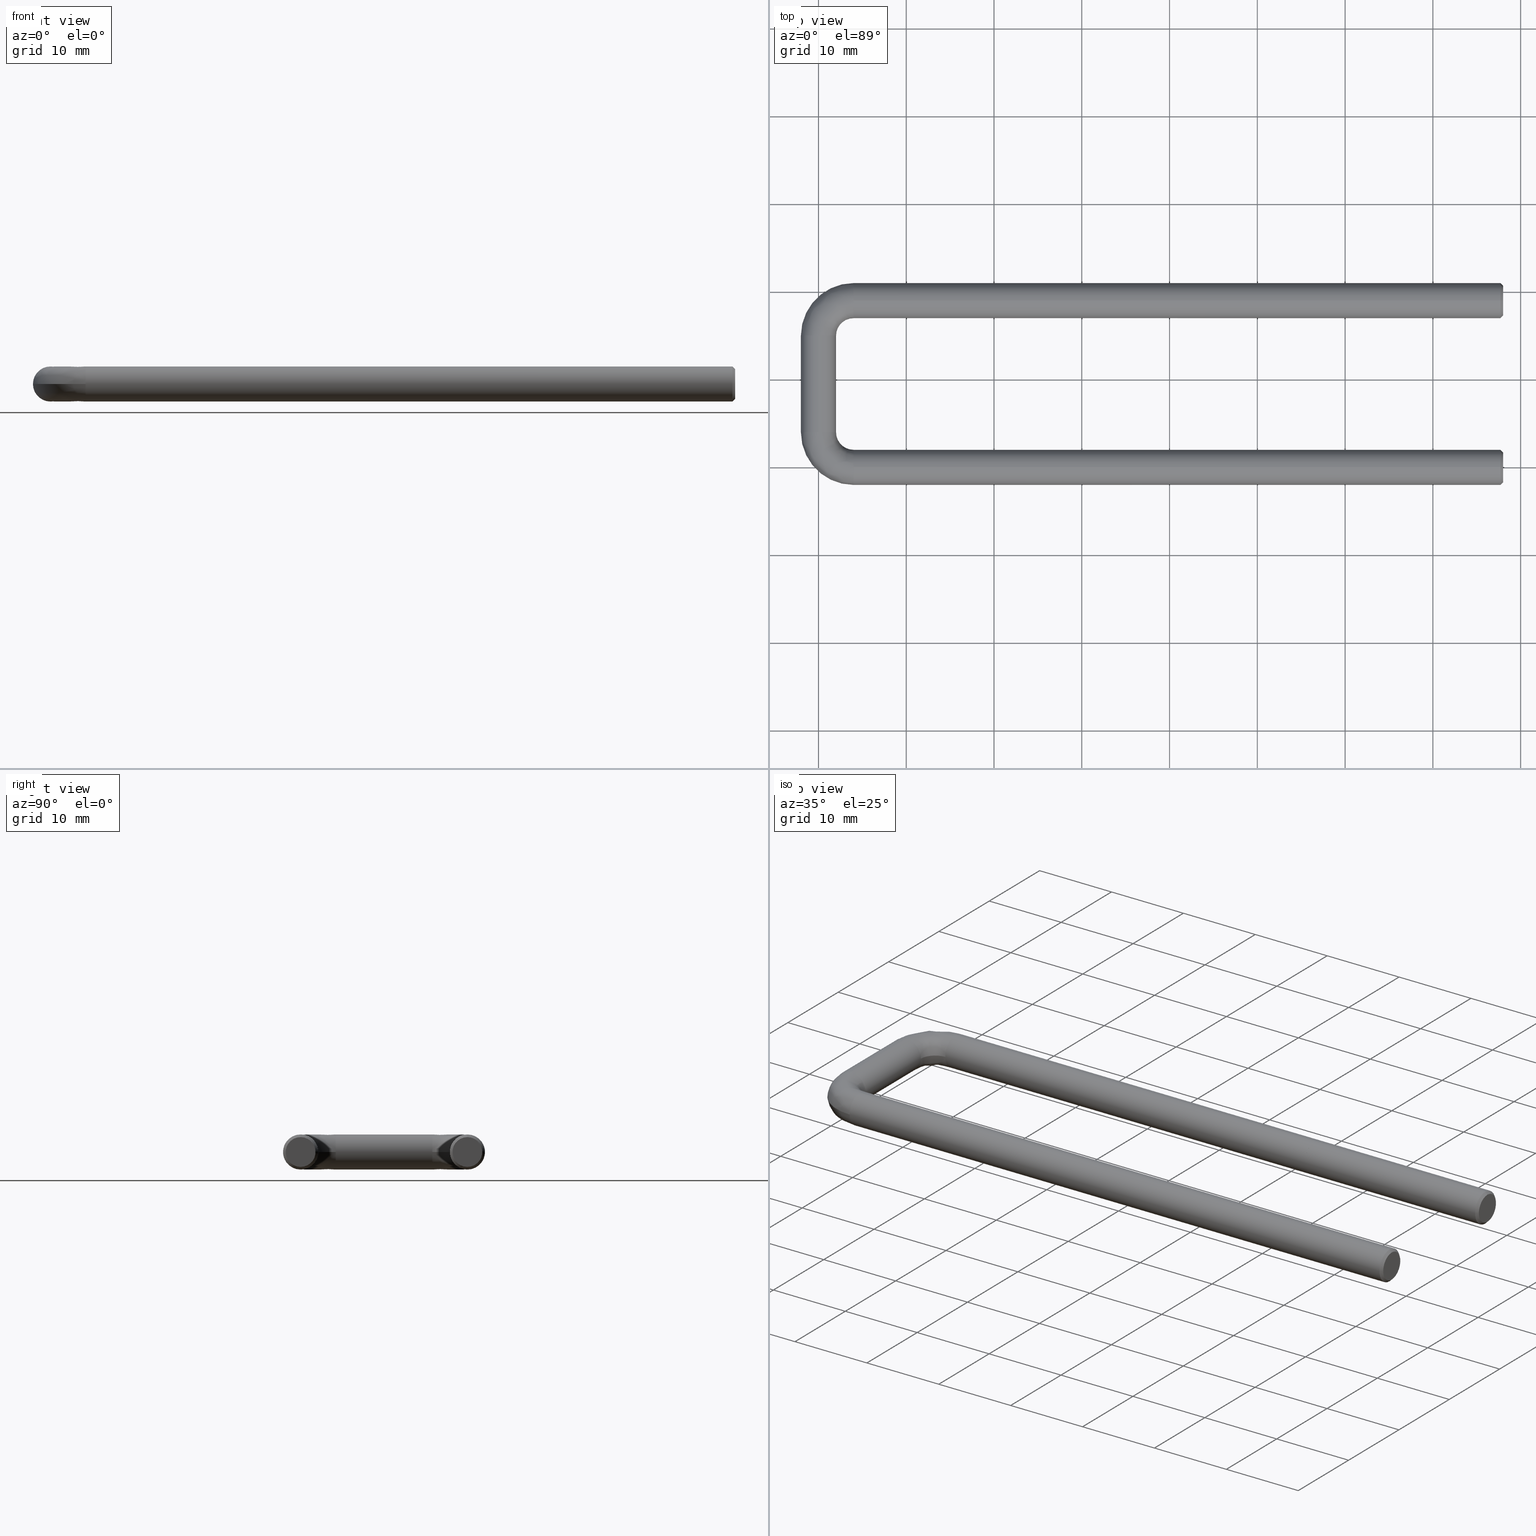
[diagram: canonical four-view strip — front | top / right | iso, engineering-drawing reading convention]
A machine part, canonical four-view strip (front | top / right | iso — engineering-drawing reading convention). The complete STEP part file that produces these views, byte-faithful:
ISO-10303-21;
HEADER;
FILE_DESCRIPTION (( 'STEP AP214' ),
    '1' );
FILE_NAME ('GH-40323-LUB.STEP',
    '2018-09-10T05:47:40',
    ( 'LinWei' ),
    ( '' ),
    'SwSTEP 2.0',
    'SolidWorks 2016',
    '' );
FILE_SCHEMA (( 'AUTOMOTIVE_DESIGN' ));
ENDSEC;

DATA;
#1 = CARTESIAN_POINT ( 'NONE',  ( 4.000000000000000000, 1.266674852000000000, 2.000000000000000000 ) ) ;
#2 = CARTESIAN_POINT ( 'NONE',  ( 77.70000000000192100, 19.00000000000000000, 2.000000000000000400 ) ) ;
#3 = ORIENTED_EDGE ( 'NONE', *, *, #749, .T. ) ;
#4 = CARTESIAN_POINT ( 'NONE',  ( 54.00000000000000000, 19.00000000000000000, 0.0000000000000000000 ) ) ;
#5 = CLOSED_SHELL ( 'NONE', ( #40, #391, #723, #793, #96, #15, #687, #152, #328, #449, #800, #385 ) ) ;
#6 =( GEOMETRIC_REPRESENTATION_CONTEXT ( 3 ) GLOBAL_UNCERTAINTY_ASSIGNED_CONTEXT ( ( #689 ) ) GLOBAL_UNIT_ASSIGNED_CONTEXT ( ( #230, #209, #514 ) ) REPRESENTATION_CONTEXT ( 'NONE', 'WORKASPACE' ) );
#7 = DIRECTION ( 'NONE',  ( -1.000000000000000000, 0.0000000000000000000, 0.0000000000000000000 ) ) ;
#8 = ORIENTED_EDGE ( 'NONE', *, *, #249, .T. ) ;
#9 = CARTESIAN_POINT ( 'NONE',  ( 53.99999999999999300, 2.449293598294706400E-016, -2.000000000000000000 ) ) ;
#10 = CARTESIAN_POINT ( 'NONE',  ( 2.896650629999999000, 16.88353519099999600, 1.060679921000000200 ) ) ;
#11 = ADVANCED_FACE ( 'NONE', ( #197 ), #486, .F. ) ;
#12 = CARTESIAN_POINT ( 'NONE',  ( 3.999999999999996400, 17.00000000000000000, 9.117408447827258500E-010 ) ) ;
#13 = FILL_AREA_STYLE_COLOUR ( '', #807 ) ;
#14 = CARTESIAN_POINT ( 'NONE',  ( 0.0000000000000000000, 17.34314575100000200, -2.000000000000000000 ) ) ;
#15 = ADVANCED_FACE ( 'NONE', ( #381 ), #498, .T. ) ;
#16 = CARTESIAN_POINT ( 'NONE',  ( 4.000000000000000000, 17.73332514800000200, -2.000000000000000000 ) ) ;
#17 = ORIENTED_EDGE ( 'NONE', *, *, #215, .T. ) ;
#18 = EDGE_CURVE ( 'NONE', #175, #781, #352, .T. ) ;
#19 = EDGE_CURVE ( 'NONE', #327, #563, #457, .T. ) ;
#20 = CARTESIAN_POINT ( 'NONE',  ( 53.99999999999999300, 2.449293598294706400E-016, -2.000000000000000000 ) ) ;
#21 = CARTESIAN_POINT ( 'NONE',  ( 3.999999999999996400, 2.449293598294706400E-016, -2.000000000000000000 ) ) ;
#22 = CYLINDRICAL_SURFACE ( 'NONE', #416, 2.000000000000000000 ) ;
#23 = EDGE_CURVE ( 'NONE', #143, #545, #496, .T. ) ;
#24 = CARTESIAN_POINT ( 'NONE',  ( 4.000000000000006200, 15.00000000000000400, 2.592632570024317900E-009 ) ) ;
#25 = CARTESIAN_POINT ( 'NONE',  ( 0.9148532999999999800, -1.266674851999999700, 2.000000000000000000 ) ) ;
#26 = EDGE_LOOP ( 'NONE', ( #544, #225, #8, #608 ) ) ;
#27 = AXIS2_PLACEMENT_3D ( 'NONE', #418, #68, #119 ) ;
#28 = VERTEX_POINT ( 'NONE', #484 ) ;
#29 = CARTESIAN_POINT ( 'NONE',  ( 0.0000000000000000000, 4.000000000000000000, -2.000000000000004900 ) ) ;
#30 = DIRECTION ( 'NONE',  ( 1.162735962786628000E-016, -1.162735962786625800E-016, -1.000000000000000000 ) ) ;
#31 = CARTESIAN_POINT ( 'NONE',  ( 4.000000000000000000, 19.00000000000000000, 0.0000000000000000000 ) ) ;
#32 = DIRECTION ( 'NONE',  ( -1.000000000000000000, 0.0000000000000000000, -1.162735962249150200E-016 ) ) ;
#33 = ORIENTED_EDGE ( 'NONE', *, *, #467, .F. ) ;
#34 = FILL_AREA_STYLE_COLOUR ( '', #767 ) ;
#35 = ORIENTED_EDGE ( 'NONE', *, *, #23, .F. ) ;
#36 = AXIS2_PLACEMENT_3D ( 'NONE', #745, #641, #812 ) ;
#37 = CARTESIAN_POINT ( 'NONE',  ( -2.116464808999999600, 4.000000000000000000, 1.060679921000000200 ) ) ;
#38 = FACE_OUTER_BOUND ( 'NONE', #164, .T. ) ;
#39 = CARTESIAN_POINT ( 'NONE',  ( 53.99999999999999300, 0.0000000000000000000, 0.0000000000000000000 ) ) ;
#40 = ADVANCED_FACE ( 'NONE', ( #511 ), #555, .T. ) ;
#41 = CARTESIAN_POINT ( 'NONE',  ( -2.116464808999999600, 0.4170578690000000800, 1.060679921000000200 ) ) ;
#42 = ORIENTED_EDGE ( 'NONE', *, *, #289, .F. ) ;
#43 = ORIENTED_EDGE ( 'NONE', *, *, #50, .T. ) ;
#44 = CARTESIAN_POINT ( 'NONE',  ( 77.70000000000190700, 0.0000000000000000000, 0.0000000000000000000 ) ) ;
#45 = ORIENTED_EDGE ( 'NONE', *, *, #330, .T. ) ;
#46 = CARTESIAN_POINT ( 'NONE',  ( 4.000000000000000000, 19.00000000000000000, 2.000000000000000000 ) ) ;
#47 = CARTESIAN_POINT ( 'NONE',  ( 0.4170578690000000800, -2.116464808999999600, 1.060679921000000200 ) ) ;
#48 = ORIENTED_EDGE ( 'NONE', *, *, #455, .T. ) ;
#49 = CARTESIAN_POINT ( 'NONE',  ( 4.000000000000000000, 21.11646480900000400, 1.060679921000000200 ) ) ;
#50 = EDGE_CURVE ( 'NONE', #361, #244, #530, .T. ) ;
#51 = CARTESIAN_POINT ( 'NONE',  ( 3.999999999999999100, 3.999999999999999100, 2.592631739343659300E-009 ) ) ;
#52 = CARTESIAN_POINT ( 'NONE',  ( 0.4911343589999999100, 20.99000833100000200, -0.1996668329999999900 ) ) ;
#53 = CARTESIAN_POINT ( 'NONE',  ( 2.116464808999999600, 2.896650629999999000, 1.060679921000000200 ) ) ;
#54 = CARTESIAN_POINT ( 'NONE',  ( 4.000000000000000000, -2.116464808999999600, 1.060679921000000200 ) ) ;
#55 = DIRECTION ( 'NONE',  ( 6.467319687690009700E-017, 6.467319687690009700E-017, -1.000000000000000000 ) ) ;
#56 = AXIS2_PLACEMENT_3D ( 'NONE', #69, #541, #789 ) ;
#57 = DIRECTION ( 'NONE',  ( -1.000000000000000000, -0.0000000000000000000, -0.0000000000000000000 ) ) ;
#58 = EDGE_CURVE ( 'NONE', #515, #123, #487, .T. ) ;
#59 = CARTESIAN_POINT ( 'NONE',  ( -1.266674852000000000, 14.99999999999999800, 2.000000000000000000 ) ) ;
#60 = CARTESIAN_POINT ( 'NONE',  ( 77.99999999999998600, 19.00000000000000000, -2.000000000000000400 ) ) ;
#61 = EDGE_LOOP ( 'NONE', ( #654, #362, #110, #735, #700 ) ) ;
#62 = DIRECTION ( 'NONE',  ( -1.000000000000000000, 0.0000000000000000000, -6.467319678268286500E-017 ) ) ;
#63 = CARTESIAN_POINT ( 'NONE',  ( 2.398855198999998400, 17.73332514800000200, 2.000000000000000000 ) ) ;
#64 = AXIS2_PLACEMENT_3D ( 'NONE', #24, #30, #32 ) ;
#65 = FILL_AREA_STYLE ('',( #34 ) ) ;
#66 = FACE_OUTER_BOUND ( 'NONE', #78, .T. ) ;
#67 = CARTESIAN_POINT ( 'NONE',  ( 2.449293598294709900E-016, 15.00000000000000000, 2.000000000000000000 ) ) ;
#68 = DIRECTION ( 'NONE',  ( -1.000000000000000000, 0.0000000000000000000, 0.0000000000000000000 ) ) ;
#69 = CARTESIAN_POINT ( 'NONE',  ( 0.0000000000000000000, 4.000000000000000000, 0.0000000000000000000 ) ) ;
#70 = CARTESIAN_POINT ( 'NONE',  ( 2.449293598294706400E-016, 15.00000000000000000, 2.000000000000000000 ) ) ;
#71 = ORIENTED_EDGE ( 'NONE', *, *, #412, .T. ) ;
#72 = ORIENTED_EDGE ( 'NONE', *, *, #162, .T. ) ;
#73 = ORIENTED_EDGE ( 'NONE', *, *, #129, .T. ) ;
#74 = SURFACE_SIDE_STYLE ('',( #323 ) ) ;
#75 = AXIS2_PLACEMENT_3D ( 'NONE', #757, #670, #699 ) ;
#76 = SURFACE_STYLE_USAGE ( .BOTH. , #74 ) ;
#77 =( LENGTH_UNIT ( ) NAMED_UNIT ( * ) SI_UNIT ( .MILLI., .METRE. ) );
#78 = EDGE_LOOP ( 'NONE', ( #266, #265, #274, #253, #173, #213 ) ) ;
#79 = PRODUCT_DEFINITION_SHAPE ( 'NONE', 'NONE',  #155 ) ;
#80 = AXIS2_PLACEMENT_3D ( 'NONE', #613, #606, #444 ) ;
#81 = CARTESIAN_POINT ( 'NONE',  ( 1.990008331000000100, 15.00000000000000000, 0.1996668330000000400 ) ) ;
#82 = ORIENTED_EDGE ( 'NONE', *, *, #179, .F. ) ;
#83 =( NAMED_UNIT ( * ) PLANE_ANGLE_UNIT ( ) SI_UNIT ( $, .RADIAN. ) );
#84 = CARTESIAN_POINT ( 'NONE',  ( 1.990008330999999900, 16.17742586000000300, 0.1996668329999999900 ) ) ;
#85 = CARTESIAN_POINT ( 'NONE',  ( 2.822574140000000400, 17.00999166900000900, 0.1996668329999999900 ) ) ;
#86 = VERTEX_POINT ( 'NONE', #422 ) ;
#87 = ORIENTED_EDGE ( 'NONE', *, *, #428, .T. ) ;
#88 = DIRECTION ( 'NONE',  ( -0.7071067811865577900, 8.659560562354808400E-017, -0.7071067811865373600 ) ) ;
#89 = UNCERTAINTY_MEASURE_WITH_UNIT (LENGTH_MEASURE( 1.000000000000000100E-005 ), #77, 'distance_accuracy_value', 'NONE');
#90 = CIRCLE ( 'NONE', #64, 1.999999999603671300 ) ;
#91 = DIRECTION ( 'NONE',  ( 0.0000000000000000000, 0.0000000000000000000, 1.000000000000000000 ) ) ;
#92 = EDGE_CURVE ( 'NONE', #211, #300, #564, .T. ) ;
#93 = CARTESIAN_POINT ( 'NONE',  ( 0.4911343590000000800, -1.990008330999999900, -0.1996668330000000200 ) ) ;
#94 = APPLICATION_CONTEXT ( 'automotive_design' ) ;
#95 = ORIENTED_EDGE ( 'NONE', *, *, #578, .T. ) ;
#96 = ADVANCED_FACE ( 'NONE', ( #532 ), #764, .T. ) ;
#97 = EDGE_LOOP ( 'NONE', ( #401, #203, #148, #144, #139, #122 ) ) ;
#98 = CARTESIAN_POINT ( 'NONE',  ( 4.000000000000000000, -1.266674852000000000, 2.000000000000000000 ) ) ;
#99 = EDGE_CURVE ( 'NONE', #143, #211, #630, .T. ) ;
#100 = CARTESIAN_POINT ( 'NONE',  ( 2.449293598294706400E-016, 4.000000000000000000, 1.999999999999995300 ) ) ;
#101 = CIRCLE ( 'NONE', #581, 2.000000000000000000 ) ;
#102 = DIRECTION ( 'NONE',  ( -1.878093646019437100E-017, -1.878093646019437100E-017, 1.000000000000000000 ) ) ;
#103 = AXIS2_PLACEMENT_3D ( 'NONE', #51, #55, #62 ) ;
#104 = CARTESIAN_POINT ( 'NONE',  ( 2.000000000198167300, 15.00000000000000000, 1.116728850648756700E-009 ) ) ;
#105 = DIRECTION ( 'NONE',  ( 0.0000000000000000000, 0.0000000000000000000, -1.000000000000000000 ) ) ;
#106 = EDGE_LOOP ( 'NONE', ( #522, #87, #445, #33, #473 ) ) ;
#107 = DIRECTION ( 'NONE',  ( -1.000000000000000000, -0.0000000000000000000, -0.0000000000000000000 ) ) ;
#108 = AXIS2_PLACEMENT_3D ( 'NONE', #675, #664, #644 ) ;
#109 = CARTESIAN_POINT ( 'NONE',  ( 53.99999999999999300, 0.0000000000000000000, 0.0000000000000000000 ) ) ;
#110 = ORIENTED_EDGE ( 'NONE', *, *, #597, .F. ) ;
#111 = CARTESIAN_POINT ( 'NONE',  ( 3.999999999999996400, 0.0000000000000000000, 0.0000000000000000000 ) ) ;
#112 = CARTESIAN_POINT ( 'NONE',  ( 54.00000000000000000, 19.00000000000000000, 0.0000000000000000000 ) ) ;
#113 = DIRECTION ( 'NONE',  ( 2.727674553461913100E-017, -2.727674553461913100E-017, 1.000000000000000000 ) ) ;
#114 = DIRECTION ( 'NONE',  ( 0.0000000000000000000, 0.0000000000000000000, 1.000000000000000000 ) ) ;
#115 = PLANE ( 'NONE',  #256 ) ;
#116 = CARTESIAN_POINT ( 'NONE',  ( 4.000000000000000000, 19.00000000000000000, 2.000000000000000000 ) ) ;
#117 = CARTESIAN_POINT ( 'NONE',  ( 77.99999999999998600, 0.0000000000000000000, 0.0000000000000000000 ) ) ;
#118 = CARTESIAN_POINT ( 'NONE',  ( 53.99999999999999300, 0.0000000000000000000, 0.0000000000000000000 ) ) ;
#119 = DIRECTION ( 'NONE',  ( 0.0000000000000000000, 0.0000000000000000000, 1.000000000000000000 ) ) ;
#120 = AXIS2_PLACEMENT_3D ( 'NONE', #350, #388, #448 ) ;
#121 = ORIENTED_EDGE ( 'NONE', *, *, #648, .F. ) ;
#122 = ORIENTED_EDGE ( 'NONE', *, *, #732, .F. ) ;
#123 = VERTEX_POINT ( 'NONE', #29 ) ;
#124 = ORIENTED_EDGE ( 'NONE', *, *, #273, .F. ) ;
#125 = CARTESIAN_POINT ( 'NONE',  ( 4.000000000000000000, 16.88353519099999600, 1.060679921000000200 ) ) ;
#126 = CARTESIAN_POINT ( 'NONE',  ( 77.99999999999998600, 19.00000000000000000, -1.700000000001939500 ) ) ;
#127 = CARTESIAN_POINT ( 'NONE',  ( 4.000000000000000000, 17.00999166900000500, 0.1996668330000000400 ) ) ;
#128 =( NAMED_UNIT ( * ) PLANE_ANGLE_UNIT ( ) SI_UNIT ( $, .RADIAN. ) );
#129 = EDGE_CURVE ( 'NONE', #477, #500, #529, .T. ) ;
#130 = CARTESIAN_POINT ( 'NONE',  ( 2.116464808999999600, 15.00000000000000000, -1.060679921000000200 ) ) ;
#131 = CARTESIAN_POINT ( 'NONE',  ( 2.116464808999999600, 16.10334936999999700, -1.060679921000000200 ) ) ;
#132 = DIRECTION ( 'NONE',  ( -1.000000000000000000, -0.0000000000000000000, -0.0000000000000000000 ) ) ;
#133 = CARTESIAN_POINT ( 'NONE',  ( 2.896650629999999000, 16.88353519099999600, -1.060679921000000200 ) ) ;
#134 = EDGE_CURVE ( 'NONE', #355, #417, #579, .T. ) ;
#135 = DIRECTION ( 'NONE',  ( 0.0000000000000000000, -1.776356839400250500E-015, -1.000000000000000000 ) ) ;
#136 = CARTESIAN_POINT ( 'NONE',  ( 4.000000000000000000, 16.88353519099999600, -1.060679921000000200 ) ) ;
#137 = CARTESIAN_POINT ( 'NONE',  ( 1.266674852000000000, 15.00000000000000000, -2.000000000000000000 ) ) ;
#138 = DIRECTION ( 'NONE',  ( -1.000000000000000000, -0.0000000000000000000, -0.0000000000000000000 ) ) ;
#139 = ORIENTED_EDGE ( 'NONE', *, *, #58, .F. ) ;
#140 = ORIENTED_EDGE ( 'NONE', *, *, #673, .F. ) ;
#141 = STYLED_ITEM ( 'NONE', ( #586 ), #305 ) ;
#142 = ORIENTED_EDGE ( 'NONE', *, *, #134, .T. ) ;
#143 = VERTEX_POINT ( 'NONE', #446 ) ;
#144 = ORIENTED_EDGE ( 'NONE', *, *, #629, .T. ) ;
#145 = DIRECTION ( 'NONE',  ( -1.000000000000000000, -0.0000000000000000000, -0.0000000000000000000 ) ) ;
#146 = DIRECTION ( 'NONE',  ( -1.000000000000000000, -0.0000000000000000000, -0.0000000000000000000 ) ) ;
#147 =( LENGTH_UNIT ( ) NAMED_UNIT ( * ) SI_UNIT ( .MILLI., .METRE. ) );
#148 = ORIENTED_EDGE ( 'NONE', *, *, #162, .F. ) ;
#149 = ORIENTED_EDGE ( 'NONE', *, *, #273, .T. ) ;
#150 = CARTESIAN_POINT ( 'NONE',  ( 1.266674851999999700, 2.398855198999998900, 2.000000000000000000 ) ) ;
#151 = VECTOR ( 'NONE', #400, 1000.000000000000000 ) ;
#152 = ADVANCED_FACE ( 'NONE', ( #655 ), #224, .T. ) ;
#153 = CARTESIAN_POINT ( 'NONE',  ( -2.000000000099083400, 4.000000000000000000, 3.284779882328786500E-011 ) ) ;
#154 = ORIENTED_EDGE ( 'NONE', *, *, #412, .F. ) ;
#155 = PRODUCT_DEFINITION ( 'UNKNOWN', '', #200, #508 ) ;
#156 = ORIENTED_EDGE ( 'NONE', *, *, #506, .F. ) ;
#157 =( NAMED_UNIT ( * ) SI_UNIT ( $, .STERADIAN. ) SOLID_ANGLE_UNIT ( ) );
#158 =( NAMED_UNIT ( * ) SI_UNIT ( $, .STERADIAN. ) SOLID_ANGLE_UNIT ( ) );
#159 = CARTESIAN_POINT ( 'NONE',  ( 0.0000000000000000000, 15.00000000000000000, -2.000000000000000000 ) ) ;
#160 = ORIENTED_EDGE ( 'NONE', *, *, #390, .T. ) ;
#161 = VERTEX_POINT ( 'NONE', #465 ) ;
#162 = EDGE_CURVE ( 'NONE', #28, #175, #737, .T. ) ;
#163 =( NAMED_UNIT ( * ) PLANE_ANGLE_UNIT ( ) SI_UNIT ( $, .RADIAN. ) );
#164 = EDGE_LOOP ( 'NONE', ( #652, #204, #819, #140, #269 ) ) ;
#165 = ORIENTED_EDGE ( 'NONE', *, *, #50, .F. ) ;
#166 =( LENGTH_UNIT ( ) NAMED_UNIT ( * ) SI_UNIT ( .MILLI., .METRE. ) );
#167 = APPLICATION_PROTOCOL_DEFINITION ( 'draft international standard', 'automotive_design', 1998, #730 ) ;
#168 = FACE_OUTER_BOUND ( 'NONE', #61, .T. ) ;
#169 = DIRECTION ( 'NONE',  ( 0.0000000000000000000, 0.0000000000000000000, -1.000000000000000000 ) ) ;
#170 = CARTESIAN_POINT ( 'NONE',  ( 4.000000000000000000, 1.990008331000000100, 0.1996668330000000400 ) ) ;
#171 = EDGE_CURVE ( 'NONE', #161, #86, #682, .T. ) ;
#172 = CARTESIAN_POINT ( 'NONE',  ( 54.00000000000000000, 19.00000000000000000, 0.0000000000000000000 ) ) ;
#173 = ORIENTED_EDGE ( 'NONE', *, *, #673, .T. ) ;
#174 = ORIENTED_EDGE ( 'NONE', *, *, #99, .T. ) ;
#175 = VERTEX_POINT ( 'NONE', #431 ) ;
#176 = PRESENTATION_LAYER_ASSIGNMENT (  '', '', ( #141 ) ) ;
#177 = DIRECTION ( 'NONE',  ( 1.000000000000000000, 0.0000000000000000000, 0.0000000000000000000 ) ) ;
#178 = DIRECTION ( 'NONE',  ( 1.000000000000000000, 0.0000000000000000000, 0.0000000000000000000 ) ) ;
#179 = EDGE_CURVE ( 'NONE', #243, #559, #746, .T. ) ;
#180 = DIRECTION ( 'NONE',  ( -0.0000000000000000000, -1.000000000000000000, -4.336808689942017700E-016 ) ) ;
#181 = CARTESIAN_POINT ( 'NONE',  ( 2.116464808999999600, 4.000000000000000000, -1.060679921000000200 ) ) ;
#182 = ORIENTED_EDGE ( 'NONE', *, *, #310, .T. ) ;
#183 = CARTESIAN_POINT ( 'NONE',  ( 1.990008331000000100, 4.000000000000000000, -0.1996668330000000400 ) ) ;
#184 = CARTESIAN_POINT ( 'NONE',  ( 4.000000000000000000, 19.00000000000000000, -2.000000000000000000 ) ) ;
#185 = CARTESIAN_POINT ( 'NONE',  ( 2.116464808999999600, 2.896650629999999000, -1.060679921000000200 ) ) ;
#186 = VERTEX_POINT ( 'NONE', #21 ) ;
#187 = AXIS2_PLACEMENT_3D ( 'NONE', #524, #540, #472 ) ;
#188 = CARTESIAN_POINT ( 'NONE',  ( -1.266674852000000000, 14.99999999999999800, -2.000000000000000000 ) ) ;
#189 = CARTESIAN_POINT ( 'NONE',  ( 4.000000000000000000, 20.99000833099999900, -0.1996668330000000400 ) ) ;
#190 = FACE_OUTER_BOUND ( 'NONE', #607, .T. ) ;
#191 = CARTESIAN_POINT ( 'NONE',  ( -1.266674852000000000, 18.08514669999999600, -2.000000000000000000 ) ) ;
#192 = CARTESIAN_POINT ( 'NONE',  ( 4.000000000000000000, 1.266674852000000000, -2.000000000000000000 ) ) ;
#193 = AXIS2_PLACEMENT_3D ( 'NONE', #267, #262, #293 ) ;
#194 = CARTESIAN_POINT ( 'NONE',  ( 77.99999999999998600, 0.0000000000000000000, 0.0000000000000000000 ) ) ;
#195 = ORIENTED_EDGE ( 'NONE', *, *, #58, .T. ) ;
#196 = CARTESIAN_POINT ( 'NONE',  ( 0.0000000000000000000, 1.656854248999999800, 1.999999999999999800 ) ) ;
#197 = FACE_OUTER_BOUND ( 'NONE', #783, .T. ) ;
#198 = ORIENTED_EDGE ( 'NONE', *, *, #799, .T. ) ;
#199 = DIRECTION ( 'NONE',  ( 0.0000000000000000000, 0.0000000000000000000, -1.000000000000000000 ) ) ;
#200 = PRODUCT_DEFINITION_FORMATION_WITH_SPECIFIED_SOURCE ( 'ANY', '', #283, .NOT_KNOWN. ) ;
#201 = CARTESIAN_POINT ( 'NONE',  ( 2.398855198999998900, 1.266674851999999700, -2.000000000000000000 ) ) ;
#202 = FILL_AREA_STYLE ('',( #13 ) ) ;
#203 = ORIENTED_EDGE ( 'NONE', *, *, #18, .F. ) ;
#204 = ORIENTED_EDGE ( 'NONE', *, *, #791, .F. ) ;
#205 = CARTESIAN_POINT ( 'NONE',  ( 1.266674851999999700, 2.398855198999998900, -2.000000000000000000 ) ) ;
#206 = EDGE_CURVE ( 'NONE', #545, #143, #615, .T. ) ;
#207 = SURFACE_STYLE_FILL_AREA ( #202 ) ;
#208 = CARTESIAN_POINT ( 'NONE',  ( 1.266674852000000000, 4.000000000000000000, -2.000000000000000000 ) ) ;
#209 =( NAMED_UNIT ( * ) PLANE_ANGLE_UNIT ( ) SI_UNIT ( $, .RADIAN. ) );
#210 = CARTESIAN_POINT ( 'NONE',  ( 4.000000000000000000, 0.0000000000000000000, -2.000000000000000000 ) ) ;
#211 = VERTEX_POINT ( 'NONE', #284 ) ;
#212 = ORIENTED_EDGE ( 'NONE', *, *, #629, .F. ) ;
#213 = ORIENTED_EDGE ( 'NONE', *, *, #171, .T. ) ;
#214 = AXIS2_PLACEMENT_3D ( 'NONE', #456, #744, #169 ) ;
#215 = EDGE_CURVE ( 'NONE', #751, #268, #780, .T. ) ;
#216 = ORIENTED_EDGE ( 'NONE', *, *, #23, .T. ) ;
#217 = DIRECTION ( 'NONE',  ( 1.000000000000000000, 0.0000000000000000000, 0.0000000000000000000 ) ) ;
#218 = CARTESIAN_POINT ( 'NONE',  ( 0.4170578690000000800, 21.11646480900000400, 1.060679921000000200 ) ) ;
#219 = CARTESIAN_POINT ( 'NONE',  ( 1.656854248999999800, 0.0000000000000000000, -1.999999999999999800 ) ) ;
#220 = MECHANICAL_DESIGN_GEOMETRIC_PRESENTATION_REPRESENTATION (  '', ( #141 ), #264 ) ;
#221 = CARTESIAN_POINT ( 'NONE',  ( 0.0000000000000000000, 1.656854248999999800, -1.999999999999999800 ) ) ;
#222 = EDGE_LOOP ( 'NONE', ( #795, #808 ) ) ;
#223 = CARTESIAN_POINT ( 'NONE',  ( 0.0000000000000000000, 4.000000000000000000, -2.000000000000000000 ) ) ;
#224 =( BOUNDED_SURFACE ( )  B_SPLINE_SURFACE ( 3, 3, ( 
 ( #170, #603, #598, #475 ),
 ( #275, #341, #185, #181 ),
 ( #192, #201, #205, #208 ),
 ( #210, #219, #221, #223 ),
 ( #226, #228, #231, #233 ),
 ( #236, #247, #248, #238 ),
 ( #259, #242, #809, #411 ) ),
 .UNSPECIFIED., .F., .F., .F. ) 
 B_SPLINE_SURFACE_WITH_KNOTS ( ( 4, 3, 4 ),
 ( 4, 4 ),
 ( 0.0000000000000000000, 0.5000000000000000000, 1.000000000000000000 ),
 ( 0.0000000000000000000, 1.000000000000000000 ),
 .UNSPECIFIED. ) 
 GEOMETRIC_REPRESENTATION_ITEM ( )  RATIONAL_B_SPLINE_SURFACE ( (
 ( 1.000000000000000000, 0.8047378541243650500, 0.8047378541243650500, 1.000000000000000000),
 ( 0.7805883148851628900, 0.6281689654752399300, 0.6281689654752399300, 0.7805883148851628900),
 ( 0.7805883148851628900, 0.6281689654752399300, 0.6281689654752399300, 0.7805883148851628900),
 ( 1.000000000000000000, 0.8047378541243650500, 0.8047378541243650500, 1.000000000000000000),
 ( 0.7805883148851628900, 0.6281689654752399300, 0.6281689654752399300, 0.7805883148851628900),
 ( 0.7805883148851628900, 0.6281689654752399300, 0.6281689654752399300, 0.7805883148851628900),
 ( 1.000000000000000000, 0.8047378541243650500, 0.8047378541243650500, 1.000000000000000000) ) ) 
 REPRESENTATION_ITEM ( '' )  SURFACE ( )  );
#225 = ORIENTED_EDGE ( 'NONE', *, *, #92, .T. ) ;
#226 = CARTESIAN_POINT ( 'NONE',  ( 4.000000000000000000, -1.266674852000000000, -2.000000000000000000 ) ) ;
#227 = EDGE_CURVE ( 'NONE', #573, #243, #759, .T. ) ;
#228 = CARTESIAN_POINT ( 'NONE',  ( 0.9148532999999999800, -1.266674851999999700, -2.000000000000000000 ) ) ;
#229 = AXIS2_PLACEMENT_3D ( 'NONE', #507, #518, #519 ) ;
#230 =( LENGTH_UNIT ( ) NAMED_UNIT ( * ) SI_UNIT ( .MILLI., .METRE. ) );
#231 = CARTESIAN_POINT ( 'NONE',  ( -1.266674851999999700, 0.9148532999999999800, -2.000000000000000000 ) ) ;
#232 =( LENGTH_UNIT ( ) NAMED_UNIT ( * ) SI_UNIT ( .MILLI., .METRE. ) );
#233 = CARTESIAN_POINT ( 'NONE',  ( -1.266674852000000000, 4.000000000000000000, -2.000000000000000000 ) ) ;
#234 = CLOSED_SHELL ( 'NONE', ( #509, #332, #504, #571, #11, #451 ) ) ;
#235 = CARTESIAN_POINT ( 'NONE',  ( -2.116464809000000000, 14.99999999999999800, 1.060679921000000200 ) ) ;
#236 = CARTESIAN_POINT ( 'NONE',  ( 4.000000000000000000, -2.116464808999999600, -1.060679921000000200 ) ) ;
#237 = DIRECTION ( 'NONE',  ( 0.0000000000000000000, 0.0000000000000000000, -1.000000000000000000 ) ) ;
#238 = CARTESIAN_POINT ( 'NONE',  ( -2.116464808999999600, 4.000000000000000000, -1.060679921000000200 ) ) ;
#239 = CARTESIAN_POINT ( 'NONE',  ( 1.266674852000000000, 15.00000000000000000, 2.000000000000000000 ) ) ;
#240 = DIRECTION ( 'NONE',  ( 0.0000000000000000000, 8.881784197001252300E-016, -1.000000000000000000 ) ) ;
#241 = PRODUCT_RELATED_PRODUCT_CATEGORY ( 'part', '', ( #283 ) ) ;
#242 = CARTESIAN_POINT ( 'NONE',  ( 0.4911343590000000800, -1.990008330999999900, 0.1996668330000000200 ) ) ;
#243 = VERTEX_POINT ( 'NONE', #618 ) ;
#244 = VERTEX_POINT ( 'NONE', #384 ) ;
#245 = CARTESIAN_POINT ( 'NONE',  ( 0.0000000000000000000, 4.000000000000000000, 2.000000000000000000 ) ) ;
#246 = DIRECTION ( 'NONE',  ( 1.000000000000000000, 0.0000000000000000000, 0.0000000000000000000 ) ) ;
#247 = CARTESIAN_POINT ( 'NONE',  ( 0.4170578690000000800, -2.116464808999999600, -1.060679921000000200 ) ) ;
#248 = CARTESIAN_POINT ( 'NONE',  ( -2.116464808999999600, 0.4170578690000000800, -1.060679921000000200 ) ) ;
#249 = EDGE_CURVE ( 'NONE', #300, #342, #669, .T. ) ;
#250 = ADVANCED_BREP_SHAPE_REPRESENTATION ( 'GH-40323-LUB', ( #590, #305, #263, #120 ), #488 ) ;
#251 = ADVANCED_FACE ( 'NONE', ( #326 ), #665, .T. ) ;
#252 = CARTESIAN_POINT ( 'NONE',  ( 0.9148532999999998700, 20.26667485199999800, -2.000000000000000000 ) ) ;
#253 = ORIENTED_EDGE ( 'NONE', *, *, #648, .T. ) ;
#254 = CARTESIAN_POINT ( 'NONE',  ( 4.000000000000000000, 20.26667485199999400, -2.000000000000000000 ) ) ;
#255 = ORIENTED_EDGE ( 'NONE', *, *, #799, .F. ) ;
#256 = AXIS2_PLACEMENT_3D ( 'NONE', #109, #397, #533 ) ;
#257 = DIRECTION ( 'NONE',  ( 1.000000000000000000, 0.0000000000000000000, 0.0000000000000000000 ) ) ;
#258 = EDGE_CURVE ( 'NONE', #781, #325, #260, .T. ) ;
#259 = CARTESIAN_POINT ( 'NONE',  ( 4.000000000000000000, -1.990008331000000100, 0.1996668330000000400 ) ) ;
#260 = LINE ( 'NONE', #70, #638 ) ;
#261 = CYLINDRICAL_SURFACE ( 'NONE', #460, 2.000000000000000400 ) ;
#262 = DIRECTION ( 'NONE',  ( 0.0000000000000000000, 1.000000000000000000, 4.336808689942017700E-016 ) ) ;
#263 = MANIFOLD_SOLID_BREP ( '�ɨ�2', #234 ) ;
#264 =( GEOMETRIC_REPRESENTATION_CONTEXT ( 3 ) GLOBAL_UNCERTAINTY_ASSIGNED_CONTEXT ( ( #89 ) ) GLOBAL_UNIT_ASSIGNED_CONTEXT ( ( #77, #83, #158 ) ) REPRESENTATION_CONTEXT ( 'NONE', 'WORKASPACE' ) );
#265 = ORIENTED_EDGE ( 'NONE', *, *, #376, .T. ) ;
#266 = ORIENTED_EDGE ( 'NONE', *, *, #295, .T. ) ;
#267 = CARTESIAN_POINT ( 'NONE',  ( 0.0000000000000000000, 15.00000000000000000, -6.755321789299919800E-041 ) ) ;
#268 = VERTEX_POINT ( 'NONE', #46 ) ;
#269 = ORIENTED_EDGE ( 'NONE', *, *, #642, .F. ) ;
#270 = EDGE_LOOP ( 'NONE', ( #792, #17, #288, #562, #683, #182 ) ) ;
#271 = DIRECTION ( 'NONE',  ( 1.000000000000000000, 0.0000000000000000000, 0.0000000000000000000 ) ) ;
#272 = AXIS2_PLACEMENT_3D ( 'NONE', #580, #583, #589 ) ;
#273 = EDGE_CURVE ( 'NONE', #211, #380, #517, .T. ) ;
#274 = ORIENTED_EDGE ( 'NONE', *, *, #732, .T. ) ;
#275 = CARTESIAN_POINT ( 'NONE',  ( 4.000000000000000000, 2.116464808999999600, -1.060679921000000200 ) ) ;
#276 = ADVANCED_FACE ( 'NONE', ( #292 ), #479, .T. ) ;
#277 = CARTESIAN_POINT ( 'NONE',  ( 77.99999999999998600, 19.00000000000000000, 1.700000000001939500 ) ) ;
#278 = AXIS2_PLACEMENT_3D ( 'NONE', #403, #402, #547 ) ;
#279 = DIRECTION ( 'NONE',  ( 1.000000000000000000, 0.0000000000000000000, 0.0000000000000000000 ) ) ;
#280 = DIRECTION ( 'NONE',  ( 0.0000000000000000000, 0.0000000000000000000, -1.000000000000000000 ) ) ;
#281 = ORIENTED_EDGE ( 'NONE', *, *, #295, .F. ) ;
#282 = ORIENTED_EDGE ( 'NONE', *, *, #642, .T. ) ;
#283 = PRODUCT ( 'GH-40323-LUB', 'GH-40323-LUB', '', ( #721 ) ) ;
#284 = CARTESIAN_POINT ( 'NONE',  ( 77.70000000000190700, 2.449293598294706400E-016, -2.000000000000000000 ) ) ;
#285 = CARTESIAN_POINT ( 'NONE',  ( 3.999999999999996400, 0.0000000000000000000, 0.0000000000000000000 ) ) ;
#286 = CARTESIAN_POINT ( 'NONE',  ( -1.990008331000000100, 15.00000000000000000, -0.1996668330000000400 ) ) ;
#287 = CARTESIAN_POINT ( 'NONE',  ( 4.000000000000000000, 20.26667485199999400, 2.000000000000000000 ) ) ;
#288 = ORIENTED_EDGE ( 'NONE', *, *, #467, .T. ) ;
#289 = EDGE_CURVE ( 'NONE', #662, #751, #90, .T. ) ;
#290 = CARTESIAN_POINT ( 'NONE',  ( 4.000000000000000000, -1.990008331000000100, -0.1996668330000000400 ) ) ;
#291 = CARTESIAN_POINT ( 'NONE',  ( 1.656854249000000000, 19.00000000000000000, 2.000000000000000000 ) ) ;
#292 = FACE_OUTER_BOUND ( 'NONE', #736, .T. ) ;
#293 = DIRECTION ( 'NONE',  ( 0.0000000000000000000, 0.0000000000000000000, -1.000000000000000000 ) ) ;
#294 = AXIS2_PLACEMENT_3D ( 'NONE', #539, #246, #476 ) ;
#295 = EDGE_CURVE ( 'NONE', #86, #438, #765, .T. ) ;
#296 = DIRECTION ( 'NONE',  ( 0.0000000000000000000, 0.0000000000000000000, -1.000000000000000000 ) ) ;
#297 = DIRECTION ( 'NONE',  ( 1.000000000000000000, 0.0000000000000000000, 0.0000000000000000000 ) ) ;
#298 = CARTESIAN_POINT ( 'NONE',  ( 77.99999999999998600, 19.00000000000000000, 0.0000000000000000000 ) ) ;
#299 = EDGE_LOOP ( 'NONE', ( #704, #594, #394, #156 ) ) ;
#300 = VERTEX_POINT ( 'NONE', #9 ) ;
#301 = AXIS2_PLACEMENT_3D ( 'NONE', #497, #494, #490 ) ;
#302 = DIRECTION ( 'NONE',  ( 0.0000000000000000000, 0.0000000000000000000, 1.000000000000000000 ) ) ;
#303 = EDGE_LOOP ( 'NONE', ( #684, #685, #317, #318, #212, #154 ) ) ;
#304 = CARTESIAN_POINT ( 'NONE',  ( 77.99999999999998600, 19.00000000000000000, 0.0000000000000000000 ) ) ;
#305 = MANIFOLD_SOLID_BREP ( '�ɨ�1', #620 ) ;
#306 = CARTESIAN_POINT ( 'NONE',  ( -1.266674852000000000, 4.000000000000000000, 2.000000000000000000 ) ) ;
#307 = EDGE_LOOP ( 'NONE', ( #822, #811, #796, #760, #582 ) ) ;
#308 = AXIS2_PLACEMENT_3D ( 'NONE', #304, #279, #377 ) ;
#309 = CARTESIAN_POINT ( 'NONE',  ( -2.116464809000000000, 14.99999999999999800, -1.060679921000000200 ) ) ;
#310 = EDGE_CURVE ( 'NONE', #781, #662, #786, .T. ) ;
#311 = CARTESIAN_POINT ( 'NONE',  ( 77.99999999999998600, 0.0000000000000000000, 0.0000000000000000000 ) ) ;
#312 = CARTESIAN_POINT ( 'NONE',  ( -2.116464808999999600, 18.58294213099999900, -1.060679921000000200 ) ) ;
#313 = CARTESIAN_POINT ( 'NONE',  ( -1.990008330999999900, 0.4911343590000000800, -0.1996668330000000200 ) ) ;
#314 = CARTESIAN_POINT ( 'NONE',  ( 0.4170578690000000800, 21.11646480900000400, -1.060679921000000200 ) ) ;
#315 = CARTESIAN_POINT ( 'NONE',  ( 4.000000000000000000, 21.11646480900000400, -1.060679921000000200 ) ) ;
#316 = DIRECTION ( 'NONE',  ( -1.000000000000000000, -0.0000000000000000000, -0.0000000000000000000 ) ) ;
#317 = ORIENTED_EDGE ( 'NONE', *, *, #376, .F. ) ;
#318 = ORIENTED_EDGE ( 'NONE', *, *, #390, .F. ) ;
#319 = CARTESIAN_POINT ( 'NONE',  ( -1.990008331000000100, 15.00000000000000000, 0.1996668330000000400 ) ) ;
#320 = DIRECTION ( 'NONE',  ( 1.000000000000000000, 0.0000000000000000000, 0.0000000000000000000 ) ) ;
#321 = CARTESIAN_POINT ( 'NONE',  ( 77.99999999999998600, 2.081899558552862400E-016, -1.700000000001929100 ) ) ;
#322 = DIRECTION ( 'NONE',  ( 0.0000000000000000000, -1.000000000000000000, 0.0000000000000000000 ) ) ;
#323 = SURFACE_STYLE_FILL_AREA ( #65 ) ;
#324 = CARTESIAN_POINT ( 'NONE',  ( 0.0000000000000000000, 4.000000000000000000, 0.0000000000000000000 ) ) ;
#325 = VERTEX_POINT ( 'NONE', #100 ) ;
#326 = FACE_OUTER_BOUND ( 'NONE', #657, .T. ) ;
#327 = VERTEX_POINT ( 'NONE', #20 ) ;
#328 = ADVANCED_FACE ( 'NONE', ( #38 ), #22, .T. ) ;
#329 = CARTESIAN_POINT ( 'NONE',  ( -1.990008331000000100, 4.000000000000000000, -0.1996668330000000400 ) ) ;
#330 = EDGE_CURVE ( 'NONE', #380, #342, #667, .T. ) ;
#331 = APPLICATION_PROTOCOL_DEFINITION ( 'draft international standard', 'automotive_design', 1998, #94 ) ;
#332 = ADVANCED_FACE ( 'NONE', ( #452 ), #261, .T. ) ;
#333 = CARTESIAN_POINT ( 'NONE',  ( 53.99999999999999300, 0.0000000000000000000, 0.0000000000000000000 ) ) ;
#334 = AXIS2_PLACEMENT_3D ( 'NONE', #4, #297, #237 ) ;
#335 = EDGE_CURVE ( 'NONE', #559, #372, #413, .T. ) ;
#336 = EDGE_LOOP ( 'NONE', ( #35, #174, #499, #727 ) ) ;
#337 = EDGE_LOOP ( 'NONE', ( #702, #750 ) ) ;
#338 = DIRECTION ( 'NONE',  ( -1.000000000000000000, -0.0000000000000000000, -0.0000000000000000000 ) ) ;
#339 = ORIENTED_EDGE ( 'NONE', *, *, #206, .F. ) ;
#340 = AXIS2_PLACEMENT_3D ( 'NONE', #762, #772, #802 ) ;
#341 = CARTESIAN_POINT ( 'NONE',  ( 2.896650629999999000, 2.116464808999999600, -1.060679921000000200 ) ) ;
#342 = VERTEX_POINT ( 'NONE', #463 ) ;
#343 = DIRECTION ( 'NONE',  ( 0.0000000000000000000, 0.0000000000000000000, 1.000000000000000000 ) ) ;
#344 = ORIENTED_EDGE ( 'NONE', *, *, #686, .T. ) ;
#345 = CARTESIAN_POINT ( 'NONE',  ( 0.9148532999999998700, 20.26667485199999800, 2.000000000000000000 ) ) ;
#346 = SURFACE_STYLE_USAGE ( .BOTH. , #816 ) ;
#347 = STYLED_ITEM ( 'NONE', ( #676 ), #590 ) ;
#348 = EDGE_CURVE ( 'NONE', #380, #211, #649, .T. ) ;
#349 = DIRECTION ( 'NONE',  ( 1.000000000000000000, 0.0000000000000000000, 0.0000000000000000000 ) ) ;
#350 = CARTESIAN_POINT ( 'NONE',  ( 0.0000000000000000000, 0.0000000000000000000, 0.0000000000000000000 ) ) ;
#351 = DIRECTION ( 'NONE',  ( 1.000000000000000000, 0.0000000000000000000, 0.0000000000000000000 ) ) ;
#352 = CIRCLE ( 'NONE', #526, 2.000000000000000000 ) ;
#353 = DIRECTION ( 'NONE',  ( 0.0000000000000000000, 0.0000000000000000000, -1.000000000000000000 ) ) ;
#354 = ORIENTED_EDGE ( 'NONE', *, *, #686, .F. ) ;
#355 = VERTEX_POINT ( 'NONE', #453 ) ;
#356 = CARTESIAN_POINT ( 'NONE',  ( 2.822574140000000400, 17.00999166900000900, -0.1996668329999999900 ) ) ;
#357 = DIRECTION ( 'NONE',  ( 0.0000000000000000000, 0.0000000000000000000, -1.000000000000000000 ) ) ;
#358 = DIRECTION ( 'NONE',  ( 1.000000000000000000, 0.0000000000000000000, 0.0000000000000000000 ) ) ;
#359 = CARTESIAN_POINT ( 'NONE',  ( 4.000000000000000000, 17.00999166900000500, -0.1996668330000000400 ) ) ;
#360 = DIRECTION ( 'NONE',  ( 1.000000000000000000, 0.0000000000000000000, 0.0000000000000000000 ) ) ;
#361 = VERTEX_POINT ( 'NONE', #817 ) ;
#362 = ORIENTED_EDGE ( 'NONE', *, *, #435, .T. ) ;
#363 = UNCERTAINTY_MEASURE_WITH_UNIT (LENGTH_MEASURE( 1.000000000000000100E-005 ), #147, 'distance_accuracy_value', 'NONE');
#364 = CARTESIAN_POINT ( 'NONE',  ( -1.990008330999999900, 18.50886564100000300, 0.1996668329999999900 ) ) ;
#365 = CARTESIAN_POINT ( 'NONE',  ( 53.99999999999999300, 0.0000000000000000000, 2.000000000000000000 ) ) ;
#366 = DIRECTION ( 'NONE',  ( 0.0000000000000000000, 0.0000000000000000000, -1.000000000000000000 ) ) ;
#367 = DIRECTION ( 'NONE',  ( 0.0000000000000000000, -1.000000000000000000, 0.0000000000000000000 ) ) ;
#368 = EDGE_CURVE ( 'NONE', #545, #380, #434, .T. ) ;
#369 = CARTESIAN_POINT ( 'NONE',  ( 0.0000000000000000000, 4.000000000000000000, 0.0000000000000000000 ) ) ;
#370 = EDGE_LOOP ( 'NONE', ( #42, #71, #72, #408, #142, #95 ) ) ;
#371 = CARTESIAN_POINT ( 'NONE',  ( 54.00000000000000000, 19.00000000000000000, 0.0000000000000000000 ) ) ;
#372 = VERTEX_POINT ( 'NONE', #405 ) ;
#373 = ORIENTED_EDGE ( 'NONE', *, *, #92, .F. ) ;
#374 = AXIS2_PLACEMENT_3D ( 'NONE', #118, #351, #674 ) ;
#375 = DIRECTION ( 'NONE',  ( 1.000000000000000000, 0.0000000000000000000, 0.0000000000000000000 ) ) ;
#376 = EDGE_CURVE ( 'NONE', #438, #325, #623, .T. ) ;
#377 = DIRECTION ( 'NONE',  ( 0.0000000000000000000, 0.0000000000000000000, -1.000000000000000000 ) ) ;
#378 = AXIS2_PLACEMENT_3D ( 'NONE', #425, #420, #414 ) ;
#379 = DIRECTION ( 'NONE',  ( 0.0000000000000000000, -1.000000000000000000, 0.0000000000000000000 ) ) ;
#380 = VERTEX_POINT ( 'NONE', #461 ) ;
#381 = FACE_OUTER_BOUND ( 'NONE', #97, .T. ) ;
#382 = DIRECTION ( 'NONE',  ( -1.000000000000000000, -0.0000000000000000000, -0.0000000000000000000 ) ) ;
#383 = ORIENTED_EDGE ( 'NONE', *, *, #739, .T. ) ;
#384 = CARTESIAN_POINT ( 'NONE',  ( 53.99999999999999300, 19.00000000000000000, -2.000000000000000400 ) ) ;
#385 = ADVANCED_FACE ( 'NONE', ( #190 ), #392, .T. ) ;
#386 = UNCERTAINTY_MEASURE_WITH_UNIT (LENGTH_MEASURE( 1.000000000000000100E-005 ), #232, 'distance_accuracy_value', 'NONE');
#387 = DIRECTION ( 'NONE',  ( -1.000000000000000000, -0.0000000000000000000, -0.0000000000000000000 ) ) ;
#388 = DIRECTION ( 'NONE',  ( 0.0000000000000000000, 0.0000000000000000000, 1.000000000000000000 ) ) ;
#389 = PRESENTATION_LAYER_ASSIGNMENT (  '', '', ( #347 ) ) ;
#390 = EDGE_CURVE ( 'NONE', #123, #438, #101, .T. ) ;
#391 = ADVANCED_FACE ( 'NONE', ( #168 ), #722, .T. ) ;
#392 = PLANE ( 'NONE',  #634 ) ;
#393 = CARTESIAN_POINT ( 'NONE',  ( 0.0000000000000000000, 4.000000000000000000, 0.0000000000000000000 ) ) ;
#394 = ORIENTED_EDGE ( 'NONE', *, *, #179, .T. ) ;
#395 = AXIS2_PLACEMENT_3D ( 'NONE', #826, #217, #199 ) ;
#396 = ADVANCED_FACE ( 'NONE', ( #770 ), #790, .T. ) ;
#397 = DIRECTION ( 'NONE',  ( 1.000000000000000000, 0.0000000000000000000, 0.0000000000000000000 ) ) ;
#398 = CARTESIAN_POINT ( 'NONE',  ( 1.656854248999999800, 0.0000000000000000000, 1.999999999999999800 ) ) ;
#399 = CARTESIAN_POINT ( 'NONE',  ( 77.99999999999998600, 2.449293598294706400E-016, -2.000000000000000000 ) ) ;
#400 = DIRECTION ( 'NONE',  ( -0.7071067811865577900, 0.0000000000000000000, 0.7071067811865373600 ) ) ;
#401 = ORIENTED_EDGE ( 'NONE', *, *, #258, .F. ) ;
#402 = DIRECTION ( 'NONE',  ( -1.000000000000000000, -0.0000000000000000000, -0.0000000000000000000 ) ) ;
#403 = CARTESIAN_POINT ( 'NONE',  ( 3.999999999999996400, 0.0000000000000000000, 0.0000000000000000000 ) ) ;
#404 =( NAMED_UNIT ( * ) SI_UNIT ( $, .STERADIAN. ) SOLID_ANGLE_UNIT ( ) );
#405 = CARTESIAN_POINT ( 'NONE',  ( 77.70000000000192100, 19.00000000000000000, -2.000000000000000400 ) ) ;
#406 = FILL_AREA_STYLE_COLOUR ( '', #551 ) ;
#407 = CARTESIAN_POINT ( 'NONE',  ( 4.000000000000000000, 1.990008331000000100, -0.1996668330000000400 ) ) ;
#408 = ORIENTED_EDGE ( 'NONE', *, *, #698, .F. ) ;
#409 = CARTESIAN_POINT ( 'NONE',  ( 1.266674852000000000, 16.60114480100000000, 2.000000000000000000 ) ) ;
#410 = CARTESIAN_POINT ( 'NONE',  ( 2.116464808999999600, 15.00000000000000000, 1.060679921000000200 ) ) ;
#411 = CARTESIAN_POINT ( 'NONE',  ( -1.990008331000000100, 4.000000000000000000, 0.1996668330000000400 ) ) ;
#412 = EDGE_CURVE ( 'NONE', #662, #28, #815, .T. ) ;
#413 = CIRCLE ( 'NONE', #340, 2.000000000000000400 ) ;
#414 = DIRECTION ( 'NONE',  ( 0.0000000000000000000, 0.0000000000000000000, -1.000000000000000000 ) ) ;
#415 = CARTESIAN_POINT ( 'NONE',  ( 54.00000000000000000, 19.00000000000000000, -2.000000000000000000 ) ) ;
#416 = AXIS2_PLACEMENT_3D ( 'NONE', #39, #501, #483 ) ;
#417 = VERTEX_POINT ( 'NONE', #774 ) ;
#418 = CARTESIAN_POINT ( 'NONE',  ( 77.99999999999998600, 0.0000000000000000000, 0.0000000000000000000 ) ) ;
#419 = ORIENTED_EDGE ( 'NONE', *, *, #227, .T. ) ;
#420 = DIRECTION ( 'NONE',  ( -1.000000000000000000, 0.0000000000000000000, 0.0000000000000000000 ) ) ;
#421 = FACE_OUTER_BOUND ( 'NONE', #303, .T. ) ;
#422 = CARTESIAN_POINT ( 'NONE',  ( 3.999999999999989800, 2.000000000000000000, 2.047254014255795300E-009 ) ) ;
#423 = DIRECTION ( 'NONE',  ( -1.000000000000000000, 0.0000000000000000000, 0.0000000000000000000 ) ) ;
#424 = CARTESIAN_POINT ( 'NONE',  ( 0.4911343589999999100, 20.99000833100000200, 0.1996668329999999900 ) ) ;
#425 = CARTESIAN_POINT ( 'NONE',  ( 77.70000000000190700, 0.0000000000000000000, 0.0000000000000000000 ) ) ;
#426 = MECHANICAL_DESIGN_GEOMETRIC_PRESENTATION_REPRESENTATION (  '', ( #347 ), #466 ) ;
#427 = DIRECTION ( 'NONE',  ( 0.0000000000000000000, 0.0000000000000000000, -1.000000000000000000 ) ) ;
#428 = EDGE_CURVE ( 'NONE', #500, #417, #813, .T. ) ;
#429 = ORIENTED_EDGE ( 'NONE', *, *, #587, .T. ) ;
#430 = DIRECTION ( 'NONE',  ( 1.000000000000000000, 0.0000000000000000000, 0.0000000000000000000 ) ) ;
#431 = CARTESIAN_POINT ( 'NONE',  ( -2.000000000000000000, 14.99999999999999800, 8.861088314299350400E-010 ) ) ;
#432 = CARTESIAN_POINT ( 'NONE',  ( 0.0000000000000000000, 15.00000000000000000, -6.755321789299919800E-041 ) ) ;
#433 = AXIS2_PLACEMENT_3D ( 'NONE', #31, #423, #707 ) ;
#434 = LINE ( 'NONE', #437, #151 ) ;
#435 = EDGE_CURVE ( 'NONE', #327, #186, #766, .T. ) ;
#436 = CARTESIAN_POINT ( 'NONE',  ( 53.99999999999999300, 19.00000000000000000, 0.0000000000000000000 ) ) ;
#437 = CARTESIAN_POINT ( 'NONE',  ( 77.99999999999998600, 0.0000000000000000000, 1.700000000001929100 ) ) ;
#438 = VERTEX_POINT ( 'NONE', #734 ) ;
#439 = EDGE_LOOP ( 'NONE', ( #645, #617, #198, #43 ) ) ;
#440 = ORIENTED_EDGE ( 'NONE', *, *, #227, .F. ) ;
#441 = DIRECTION ( 'NONE',  ( 0.0000000000000000000, 1.000000000000000000, 4.336808689942017700E-016 ) ) ;
#442 = CARTESIAN_POINT ( 'NONE',  ( 2.398855198999998900, 1.266674851999999700, 2.000000000000000000 ) ) ;
#443 =( BOUNDED_SURFACE ( )  B_SPLINE_SURFACE ( 3, 3, ( 
 ( #359, #356, #538, #536 ),
 ( #125, #10, #616, #410 ),
 ( #640, #63, #409, #239 ),
 ( #116, #291, #756, #535 ),
 ( #287, #345, #592, #59 ),
 ( #49, #218, #824, #235 ),
 ( #189, #52, #454, #286 ) ),
 .UNSPECIFIED., .F., .F., .T. ) 
 B_SPLINE_SURFACE_WITH_KNOTS ( ( 4, 3, 4 ),
 ( 4, 4 ),
 ( 0.0000000000000000000, 0.5000000000000000000, 1.000000000000000000 ),
 ( 0.0000000000000000000, 1.000000000000000000 ),
 .UNSPECIFIED. ) 
 GEOMETRIC_REPRESENTATION_ITEM ( )  RATIONAL_B_SPLINE_SURFACE ( (
 ( 1.000000000000000000, 0.8047378541243640500, 0.8047378541243640500, 1.000000000000000000),
 ( 0.7805883148851628900, 0.6281689654752389300, 0.6281689654752389300, 0.7805883148851628900),
 ( 0.7805883148851628900, 0.6281689654752389300, 0.6281689654752389300, 0.7805883148851628900),
 ( 1.000000000000000000, 0.8047378541243640500, 0.8047378541243640500, 1.000000000000000000),
 ( 0.7805883148851618900, 0.6281689654752389300, 0.6281689654752389300, 0.7805883148851618900),
 ( 0.7805883148851618900, 0.6281689654752389300, 0.6281689654752389300, 0.7805883148851618900),
 ( 1.000000000000000000, 0.8047378541243640500, 0.8047378541243640500, 1.000000000000000000) ) ) 
 REPRESENTATION_ITEM ( '' )  SURFACE ( )  );
#444 = DIRECTION ( 'NONE',  ( 0.0000000000000000000, 0.0000000000000000000, 1.000000000000000000 ) ) ;
#445 = ORIENTED_EDGE ( 'NONE', *, *, #134, .F. ) ;
#446 = CARTESIAN_POINT ( 'NONE',  ( 77.99999999999998600, 2.265596578423784400E-016, -1.700000000001929100 ) ) ;
#447 = AXIS2_PLACEMENT_3D ( 'NONE', #619, #561, #554 ) ;
#448 = DIRECTION ( 'NONE',  ( 1.000000000000000000, 0.0000000000000000000, 0.0000000000000000000 ) ) ;
#449 = ADVANCED_FACE ( 'NONE', ( #801 ), #821, .T. ) ;
#450 = ORIENTED_EDGE ( 'NONE', *, *, #99, .F. ) ;
#451 = ADVANCED_FACE ( 'NONE', ( #803 ), #763, .T. ) ;
#452 = FACE_OUTER_BOUND ( 'NONE', #711, .T. ) ;
#453 = CARTESIAN_POINT ( 'NONE',  ( 3.999999999999996400, 20.99999999999999600, 1.739484485162024900E-009 ) ) ;
#454 = CARTESIAN_POINT ( 'NONE',  ( -1.990008330999999900, 18.50886564100000300, -0.1996668329999999900 ) ) ;
#455 = EDGE_CURVE ( 'NONE', #573, #372, #787, .T. ) ;
#456 = CARTESIAN_POINT ( 'NONE',  ( 0.0000000000000000000, 15.00000000000000000, 0.0000000000000000000 ) ) ;
#457 = CIRCLE ( 'NONE', #447, 2.000000000000000000 ) ;
#458 = EDGE_LOOP ( 'NONE', ( #440, #48, #761, #82 ) ) ;
#459 = DIRECTION ( 'NONE',  ( 1.776356839400250500E-015, 0.0000000000000000000, -1.000000000000000000 ) ) ;
#460 = AXIS2_PLACEMENT_3D ( 'NONE', #481, #145, #91 ) ;
#461 = CARTESIAN_POINT ( 'NONE',  ( 77.70000000000190700, 0.0000000000000000000, 2.000000000000000000 ) ) ;
#462 = CARTESIAN_POINT ( 'NONE',  ( 2.822574139999999500, 1.990008330999999900, -0.1996668330000000200 ) ) ;
#463 = CARTESIAN_POINT ( 'NONE',  ( 53.99999999999999300, 0.0000000000000000000, 2.000000000000000000 ) ) ;
#464 = CARTESIAN_POINT ( 'NONE',  ( 2.116464808999999600, 4.000000000000000000, 1.060679921000000200 ) ) ;
#465 = CARTESIAN_POINT ( 'NONE',  ( 3.999999999999996400, 0.0000000000000000000, 2.000000000000000000 ) ) ;
#466 =( GEOMETRIC_REPRESENTATION_CONTEXT ( 3 ) GLOBAL_UNCERTAINTY_ASSIGNED_CONTEXT ( ( #495 ) ) GLOBAL_UNIT_ASSIGNED_CONTEXT ( ( #166, #163, #157 ) ) REPRESENTATION_CONTEXT ( 'NONE', 'WORKASPACE' ) );
#467 = EDGE_CURVE ( 'NONE', #268, #355, #568, .T. ) ;
#468 = CARTESIAN_POINT ( 'NONE',  ( 3.999999999999988000, 14.99999999999999600, 2.592631213260721800E-009 ) ) ;
#469 = DIRECTION ( 'NONE',  ( -1.000000000000000000, -0.0000000000000000000, -0.0000000000000000000 ) ) ;
#470 = AXIS2_PLACEMENT_3D ( 'NONE', #298, #271, #280 ) ;
#471 = CARTESIAN_POINT ( 'NONE',  ( 77.99999999999998600, 0.0000000000000000000, 2.000000000000000000 ) ) ;
#472 = DIRECTION ( 'NONE',  ( 0.0000000000000000000, 0.0000000000000000000, 1.000000000000000000 ) ) ;
#473 = ORIENTED_EDGE ( 'NONE', *, *, #489, .F. ) ;
#474 = CARTESIAN_POINT ( 'NONE',  ( 77.99999999999998600, 19.00000000000000000, 2.000000000000000400 ) ) ;
#475 = CARTESIAN_POINT ( 'NONE',  ( 1.990008331000000100, 4.000000000000000000, 0.1996668330000000400 ) ) ;
#476 = DIRECTION ( 'NONE',  ( 0.0000000000000000000, 0.0000000000000000000, -1.000000000000000000 ) ) ;
#477 = VERTEX_POINT ( 'NONE', #690 ) ;
#478 = DIRECTION ( 'NONE',  ( 1.000000000000000000, 0.0000000000000000000, 0.0000000000000000000 ) ) ;
#479 = CONICAL_SURFACE ( 'NONE', #27, 1.700000000001929100, 0.7853981633974337400 ) ;
#480 = SURFACE_SIDE_STYLE ('',( #502 ) ) ;
#481 = CARTESIAN_POINT ( 'NONE',  ( 77.99999999999998600, 19.00000000000000000, 0.0000000000000000000 ) ) ;
#482 = AXIS2_PLACEMENT_3D ( 'NONE', #548, #719, #782 ) ;
#483 = DIRECTION ( 'NONE',  ( 0.0000000000000000000, 0.0000000000000000000, 1.000000000000000000 ) ) ;
#484 = CARTESIAN_POINT ( 'NONE',  ( 0.0000000000000000000, 15.00000000000000000, -2.000000000000000000 ) ) ;
#485 = VECTOR ( 'NONE', #469, 1000.000000000000000 ) ;
#486 = PLANE ( 'NONE',  #482 ) ;
#487 = CIRCLE ( 'NONE', #666, 2.000000000000000000 ) ;
#488 =( GEOMETRIC_REPRESENTATION_CONTEXT ( 3 ) GLOBAL_UNCERTAINTY_ASSIGNED_CONTEXT ( ( #386 ) ) GLOBAL_UNIT_ASSIGNED_CONTEXT ( ( #232, #595, #404 ) ) REPRESENTATION_CONTEXT ( 'NONE', 'WORKASPACE' ) );
#489 = EDGE_CURVE ( 'NONE', #477, #268, #754, .T. ) ;
#490 = DIRECTION ( 'NONE',  ( 0.0000000000000000000, 0.0000000000000000000, -1.000000000000000000 ) ) ;
#491 = AXIS2_PLACEMENT_3D ( 'NONE', #369, #367, #360 ) ;
#492 = PRESENTATION_STYLE_ASSIGNMENT (( #570 ) ) ;
#493 = DIRECTION ( 'NONE',  ( -1.000000000000000000, -0.0000000000000000000, -0.0000000000000000000 ) ) ;
#494 = DIRECTION ( 'NONE',  ( 0.0000000000000000000, 1.000000000000000000, 4.336808689942017700E-016 ) ) ;
#495 = UNCERTAINTY_MEASURE_WITH_UNIT (LENGTH_MEASURE( 1.000000000000000100E-005 ), #166, 'distance_accuracy_value', 'NONE');
#496 = CIRCLE ( 'NONE', #621, 1.700000000001929100 ) ;
#497 = CARTESIAN_POINT ( 'NONE',  ( 0.0000000000000000000, 15.00000000000000000, -1.543026697945950100E-040 ) ) ;
#498 = CYLINDRICAL_SURFACE ( 'NONE', #572, 2.000000000000000000 ) ;
#499 = ORIENTED_EDGE ( 'NONE', *, *, #348, .F. ) ;
#500 = VERTEX_POINT ( 'NONE', #631 ) ;
#501 = DIRECTION ( 'NONE',  ( -1.000000000000000000, -0.0000000000000000000, -0.0000000000000000000 ) ) ;
#502 = SURFACE_STYLE_FILL_AREA ( #804 ) ;
#503 = PRESENTATION_STYLE_ASSIGNMENT (( #346 ) ) ;
#504 = ADVANCED_FACE ( 'NONE', ( #742 ), #738, .T. ) ;
#505 = AXIS2_PLACEMENT_3D ( 'NONE', #285, #146, #135 ) ;
#506 = EDGE_CURVE ( 'NONE', #372, #559, #741, .T. ) ;
#507 = CARTESIAN_POINT ( 'NONE',  ( 77.99999999999998600, 19.00000000000000000, 0.0000000000000000000 ) ) ;
#508 = PRODUCT_DEFINITION_CONTEXT ( 'detailed design', #94, 'design' ) ;
#509 = ADVANCED_FACE ( 'NONE', ( #785 ), #709, .T. ) ;
#510 = VERTEX_POINT ( 'NONE', #661 ) ;
#511 = FACE_OUTER_BOUND ( 'NONE', #106, .T. ) ;
#512 = CARTESIAN_POINT ( 'NONE',  ( 53.99999999999999300, 0.0000000000000000000, 2.000000000000000000 ) ) ;
#513 = AXIS2_PLACEMENT_3D ( 'NONE', #710, #178, #677 ) ;
#514 =( NAMED_UNIT ( * ) SI_UNIT ( $, .STERADIAN. ) SOLID_ANGLE_UNIT ( ) );
#515 = VERTEX_POINT ( 'NONE', #153 ) ;
#516 = DIRECTION ( 'NONE',  ( 0.0000000000000000000, 0.0000000000000000000, -1.000000000000000000 ) ) ;
#517 = CIRCLE ( 'NONE', #806, 2.000000000000000000 ) ;
#518 = DIRECTION ( 'NONE',  ( 1.000000000000000000, 0.0000000000000000000, 0.0000000000000000000 ) ) ;
#519 = DIRECTION ( 'NONE',  ( 0.0000000000000000000, 0.0000000000000000000, -1.000000000000000000 ) ) ;
#520 = EDGE_LOOP ( 'NONE', ( #281, #605, #282, #121, #195, #160 ) ) ;
#521 = CARTESIAN_POINT ( 'NONE',  ( -1.266674851999999700, 0.9148532999999999800, 2.000000000000000000 ) ) ;
#522 = ORIENTED_EDGE ( 'NONE', *, *, #749, .F. ) ;
#523 = DIRECTION ( 'NONE',  ( -1.000000000000000000, -0.0000000000000000000, -0.0000000000000000000 ) ) ;
#524 = CARTESIAN_POINT ( 'NONE',  ( 77.99999999999998600, 0.0000000000000000000, 0.0000000000000000000 ) ) ;
#525 = DIRECTION ( 'NONE',  ( 1.000000000000000000, 0.0000000000000000000, -2.727674551501598000E-017 ) ) ;
#526 = AXIS2_PLACEMENT_3D ( 'NONE', #565, #688, #643 ) ;
#527 = CARTESIAN_POINT ( 'NONE',  ( 3.999999999999996400, 0.0000000000000000000, 0.0000000000000000000 ) ) ;
#528 = CARTESIAN_POINT ( 'NONE',  ( 4.000000000000000000, 2.116464808999999600, 1.060679921000000200 ) ) ;
#529 = CIRCLE ( 'NONE', #825, 2.000000000000000000 ) ;
#530 = CIRCLE ( 'NONE', #725, 2.000000000000000400 ) ;
#531 = DIRECTION ( 'NONE',  ( 0.0000000000000000000, 0.0000000000000000000, 1.000000000000000000 ) ) ;
#532 = FACE_OUTER_BOUND ( 'NONE', #370, .T. ) ;
#533 = DIRECTION ( 'NONE',  ( 0.0000000000000000000, 0.0000000000000000000, -1.000000000000000000 ) ) ;
#534 = ORIENTED_EDGE ( 'NONE', *, *, #368, .T. ) ;
#535 = CARTESIAN_POINT ( 'NONE',  ( 0.0000000000000000000, 15.00000000000000000, 2.000000000000000000 ) ) ;
#536 = CARTESIAN_POINT ( 'NONE',  ( 1.990008331000000100, 15.00000000000000000, -0.1996668330000000400 ) ) ;
#537 = EDGE_CURVE ( 'NONE', #372, #244, #788, .T. ) ;
#538 = CARTESIAN_POINT ( 'NONE',  ( 1.990008330999999900, 16.17742586000000300, -0.1996668329999999900 ) ) ;
#539 = CARTESIAN_POINT ( 'NONE',  ( 53.99999999999999300, 0.0000000000000000000, 0.0000000000000000000 ) ) ;
#540 = DIRECTION ( 'NONE',  ( -1.000000000000000000, 0.0000000000000000000, 0.0000000000000000000 ) ) ;
#541 = DIRECTION ( 'NONE',  ( 0.0000000000000000000, -1.000000000000000000, 0.0000000000000000000 ) ) ;
#542 = DIRECTION ( 'NONE',  ( 1.000000000000000000, 0.0000000000000000000, 1.878093648371326100E-017 ) ) ;
#543 = VECTOR ( 'NONE', #88, 1000.000000000000000 ) ;
#544 = ORIENTED_EDGE ( 'NONE', *, *, #348, .T. ) ;
#545 = VERTEX_POINT ( 'NONE', #626 ) ;
#546 = CYLINDRICAL_SURFACE ( 'NONE', #627, 2.000000000000000000 ) ;
#547 = DIRECTION ( 'NONE',  ( 0.0000000000000000000, 8.881784197001252300E-016, -1.000000000000000000 ) ) ;
#548 = CARTESIAN_POINT ( 'NONE',  ( 53.99999999999999300, 19.00000000000000000, 0.0000000000000000000 ) ) ;
#549 = SHAPE_DEFINITION_REPRESENTATION ( #79, #250 ) ;
#550 = FACE_OUTER_BOUND ( 'NONE', #307, .T. ) ;
#551 = COLOUR_RGB ( '',0.7921568627450980000, 0.8196078431372548800, 0.9333333333333333500 ) ;
#552 = DIRECTION ( 'NONE',  ( 0.0000000000000000000, 0.0000000000000000000, 1.000000000000000000 ) ) ;
#553 = AXIS2_PLACEMENT_3D ( 'NONE', #111, #107, #105 ) ;
#554 = DIRECTION ( 'NONE',  ( 0.0000000000000000000, 0.0000000000000000000, -1.000000000000000000 ) ) ;
#555 = CYLINDRICAL_SURFACE ( 'NONE', #773, 2.000000000000000000 ) ;
#556 = EDGE_CURVE ( 'NONE', #563, #161, #720, .T. ) ;
#557 = VECTOR ( 'NONE', #692, 1000.000000000000000 ) ;
#558 = FILL_AREA_STYLE_COLOUR ( '', #694 ) ;
#559 = VERTEX_POINT ( 'NONE', #2 ) ;
#560 = PRESENTATION_LAYER_ASSIGNMENT (  '', '', ( #602 ) ) ;
#561 = DIRECTION ( 'NONE',  ( 1.000000000000000000, 0.0000000000000000000, 0.0000000000000000000 ) ) ;
#562 = ORIENTED_EDGE ( 'NONE', *, *, #698, .T. ) ;
#563 = VERTEX_POINT ( 'NONE', #512 ) ;
#564 = LINE ( 'NONE', #399, #557 ) ;
#565 = CARTESIAN_POINT ( 'NONE',  ( 0.0000000000000000000, 15.00000000000000000, -1.543026697945950100E-040 ) ) ;
#566 =( NAMED_UNIT ( * ) SI_UNIT ( $, .STERADIAN. ) SOLID_ANGLE_UNIT ( ) );
#567 = LINE ( 'NONE', #474, #584 ) ;
#568 = CIRCLE ( 'NONE', #818, 2.000000000000000000 ) ;
#569 = DIRECTION ( 'NONE',  ( -0.7071067811865531200, 0.0000000000000000000, 0.7071067811865420200 ) ) ;
#570 = SURFACE_STYLE_USAGE ( .BOTH. , #480 ) ;
#571 = ADVANCED_FACE ( 'NONE', ( #708 ), #718, .T. ) ;
#572 = AXIS2_PLACEMENT_3D ( 'NONE', #775, #778, #713 ) ;
#573 = VERTEX_POINT ( 'NONE', #126 ) ;
#574 = ADVANCED_FACE ( 'NONE', ( #693 ), #678, .T. ) ;
#575 = DIRECTION ( 'NONE',  ( -0.0000000000000000000, -1.000000000000000000, -4.336808689942017700E-016 ) ) ;
#576 = CIRCLE ( 'NONE', #374, 2.000000000000000000 ) ;
#577 = FACE_OUTER_BOUND ( 'NONE', #270, .T. ) ;
#578 = EDGE_CURVE ( 'NONE', #417, #751, #679, .T. ) ;
#579 = CIRCLE ( 'NONE', #80, 2.000000000000000000 ) ;
#580 = CARTESIAN_POINT ( 'NONE',  ( 4.000000000000000000, 19.00000000000000000, 0.0000000000000000000 ) ) ;
#581 = AXIS2_PLACEMENT_3D ( 'NONE', #324, #322, #320 ) ;
#582 = ORIENTED_EDGE ( 'NONE', *, *, #578, .F. ) ;
#583 = DIRECTION ( 'NONE',  ( -1.000000000000000000, 0.0000000000000000000, 0.0000000000000000000 ) ) ;
#584 = VECTOR ( 'NONE', #591, 1000.000000000000000 ) ;
#585 = CYLINDRICAL_SURFACE ( 'NONE', #214, 2.000000000000000000 ) ;
#586 = PRESENTATION_STYLE_ASSIGNMENT (( #76 ) ) ;
#587 = EDGE_CURVE ( 'NONE', #243, #573, #768, .T. ) ;
#588 = CIRCLE ( 'NONE', #334, 2.000000000000000000 ) ;
#589 = DIRECTION ( 'NONE',  ( 0.0000000000000000000, 0.0000000000000000000, 1.000000000000000000 ) ) ;
#590 = MANIFOLD_SOLID_BREP ( '���-����2', #5 ) ;
#591 = DIRECTION ( 'NONE',  ( -1.000000000000000000, -0.0000000000000000000, -0.0000000000000000000 ) ) ;
#592 = CARTESIAN_POINT ( 'NONE',  ( -1.266674852000000000, 18.08514669999999600, 2.000000000000000000 ) ) ;
#593 = FILL_AREA_STYLE ('',( #558 ) ) ;
#594 = ORIENTED_EDGE ( 'NONE', *, *, #587, .F. ) ;
#595 =( NAMED_UNIT ( * ) PLANE_ANGLE_UNIT ( ) SI_UNIT ( $, .RADIAN. ) );
#596 = AXIS2_PLACEMENT_3D ( 'NONE', #527, #138, #240 ) ;
#597 = EDGE_CURVE ( 'NONE', #86, #186, #639, .T. ) ;
#598 = CARTESIAN_POINT ( 'NONE',  ( 1.990008330999999900, 2.822574139999999500, 0.1996668330000000200 ) ) ;
#599 = CIRCLE ( 'NONE', #56, 2.000000000000000000 ) ;
#600 = CIRCLE ( 'NONE', #294, 2.000000000000000000 ) ;
#601 = CIRCLE ( 'NONE', #798, 6.000000000396327400 ) ;
#602 = STYLED_ITEM ( 'NONE', ( #503 ), #263 ) ;
#603 = CARTESIAN_POINT ( 'NONE',  ( 2.822574139999999500, 1.990008330999999900, 0.1996668330000000200 ) ) ;
#604 = SURFACE_STYLE_USAGE ( .BOTH. , #609 ) ;
#605 = ORIENTED_EDGE ( 'NONE', *, *, #597, .T. ) ;
#606 = DIRECTION ( 'NONE',  ( -1.000000000000000000, 0.0000000000000000000, 0.0000000000000000000 ) ) ;
#607 = EDGE_LOOP ( 'NONE', ( #73, #3 ) ) ;
#608 = ORIENTED_EDGE ( 'NONE', *, *, #330, .F. ) ;
#609 = SURFACE_SIDE_STYLE ('',( #717 ) ) ;
#610 = CYLINDRICAL_SURFACE ( 'NONE', #697, 2.000000000000000000 ) ;
#611 = CIRCLE ( 'NONE', #647, 6.000000000396334500 ) ;
#612 = CIRCLE ( 'NONE', #748, 2.000000000000000400 ) ;
#613 = CARTESIAN_POINT ( 'NONE',  ( 4.000000000000000000, 19.00000000000000000, 0.0000000000000000000 ) ) ;
#614 = AXIS2_PLACEMENT_3D ( 'NONE', #311, #349, #779 ) ;
#615 = CIRCLE ( 'NONE', #395, 1.700000000001929100 ) ;
#616 = CARTESIAN_POINT ( 'NONE',  ( 2.116464808999999600, 16.10334936999999700, 1.060679921000000200 ) ) ;
#617 = ORIENTED_EDGE ( 'NONE', *, *, #506, .T. ) ;
#618 = CARTESIAN_POINT ( 'NONE',  ( 77.99999999999998600, 19.00000000000000000, 1.700000000001939500 ) ) ;
#619 = CARTESIAN_POINT ( 'NONE',  ( 53.99999999999999300, 0.0000000000000000000, 0.0000000000000000000 ) ) ;
#620 = CLOSED_SHELL ( 'NONE', ( #574, #646, #251, #396, #728, #276 ) ) ;
#621 = AXIS2_PLACEMENT_3D ( 'NONE', #194, #257, #366 ) ;
#622 = CARTESIAN_POINT ( 'NONE',  ( 0.0000000000000000000, 15.00000000000000000, -2.000000000000000000 ) ) ;
#623 = CIRCLE ( 'NONE', #491, 2.000000000000000000 ) ;
#624 = FACE_OUTER_BOUND ( 'NONE', #337, .T. ) ;
#625 = FACE_OUTER_BOUND ( 'NONE', #26, .T. ) ;
#626 = CARTESIAN_POINT ( 'NONE',  ( 77.99999999999998600, 0.0000000000000000000, 1.700000000001929100 ) ) ;
#627 = AXIS2_PLACEMENT_3D ( 'NONE', #112, #523, #531 ) ;
#628 = CARTESIAN_POINT ( 'NONE',  ( 1.266674852000000000, 16.60114480100000000, -2.000000000000000000 ) ) ;
#629 = EDGE_CURVE ( 'NONE', #28, #123, #696, .T. ) ;
#630 = LINE ( 'NONE', #321, #543 ) ;
#631 = CARTESIAN_POINT ( 'NONE',  ( 54.00000000000000000, 19.00000000000000000, -2.000000000000000000 ) ) ;
#632 = ORIENTED_EDGE ( 'NONE', *, *, #537, .T. ) ;
#633 = CARTESIAN_POINT ( 'NONE',  ( 1.656854249000000000, 19.00000000000000000, -2.000000000000000000 ) ) ;
#634 = AXIS2_PLACEMENT_3D ( 'NONE', #371, #358, #353 ) ;
#635 = VECTOR ( 'NONE', #575, 1000.000000000000000 ) ;
#636 = CIRCLE ( 'NONE', #553, 2.000000000000000000 ) ;
#637 = DIRECTION ( 'NONE',  ( -1.000000000000000000, -0.0000000000000000000, -0.0000000000000000000 ) ) ;
#638 = VECTOR ( 'NONE', #180, 1000.000000000000000 ) ;
#639 = CIRCLE ( 'NONE', #505, 2.000000000000000000 ) ;
#640 = CARTESIAN_POINT ( 'NONE',  ( 4.000000000000000000, 17.73332514800000200, 2.000000000000000000 ) ) ;
#641 = DIRECTION ( 'NONE',  ( -1.000000000000000000, 0.0000000000000000000, 0.0000000000000000000 ) ) ;
#642 = EDGE_CURVE ( 'NONE', #186, #510, #636, .T. ) ;
#643 = DIRECTION ( 'NONE',  ( 0.0000000000000000000, 0.0000000000000000000, -1.000000000000000000 ) ) ;
#644 = DIRECTION ( 'NONE',  ( 0.0000000000000000000, 0.0000000000000000000, 1.000000000000000000 ) ) ;
#645 = ORIENTED_EDGE ( 'NONE', *, *, #537, .F. ) ;
#646 = ADVANCED_FACE ( 'NONE', ( #625 ), #610, .T. ) ;
#647 = AXIS2_PLACEMENT_3D ( 'NONE', #747, #102, #542 ) ;
#648 = EDGE_CURVE ( 'NONE', #515, #510, #611, .T. ) ;
#649 = CIRCLE ( 'NONE', #378, 2.000000000000000000 ) ;
#650 = DIRECTION ( 'NONE',  ( 0.0000000000000000000, 0.0000000000000000000, 1.000000000000000000 ) ) ;
#651 = DIRECTION ( 'NONE',  ( -1.000000000000000000, 0.0000000000000000000, 0.0000000000000000000 ) ) ;
#652 = ORIENTED_EDGE ( 'NONE', *, *, #435, .F. ) ;
#653 = AXIS2_PLACEMENT_3D ( 'NONE', #740, #316, #302 ) ;
#654 = ORIENTED_EDGE ( 'NONE', *, *, #19, .F. ) ;
#655 = FACE_OUTER_BOUND ( 'NONE', #520, .T. ) ;
#656 = CARTESIAN_POINT ( 'NONE',  ( 4.000000000000000000, 0.0000000000000000000, 2.000000000000000000 ) ) ;
#657 = EDGE_LOOP ( 'NONE', ( #373, #149, #45, #383 ) ) ;
#658 = CARTESIAN_POINT ( 'NONE',  ( 4.000000000000000000, 19.00000000000000000, 0.0000000000000000000 ) ) ;
#659 = CARTESIAN_POINT ( 'NONE',  ( 54.00000000000000000, 19.00000000000000000, 2.000000000000000000 ) ) ;
#660 =( BOUNDED_SURFACE ( )  B_SPLINE_SURFACE ( 3, 3, ( 
 ( #290, #93, #313, #329 ),
 ( #54, #47, #41, #37 ),
 ( #98, #25, #521, #306 ),
 ( #656, #398, #196, #245 ),
 ( #1, #442, #150, #752 ),
 ( #528, #820, #53, #464 ),
 ( #407, #462, #663, #183 ) ),
 .UNSPECIFIED., .F., .F., .F. ) 
 B_SPLINE_SURFACE_WITH_KNOTS ( ( 4, 3, 4 ),
 ( 4, 4 ),
 ( 0.0000000000000000000, 0.5000000000000000000, 1.000000000000000000 ),
 ( 0.0000000000000000000, 1.000000000000000000 ),
 .UNSPECIFIED. ) 
 GEOMETRIC_REPRESENTATION_ITEM ( )  RATIONAL_B_SPLINE_SURFACE ( (
 ( 1.000000000000000000, 0.8047378541243650500, 0.8047378541243650500, 1.000000000000000000),
 ( 0.7805883148851628900, 0.6281689654752399300, 0.6281689654752399300, 0.7805883148851628900),
 ( 0.7805883148851628900, 0.6281689654752399300, 0.6281689654752399300, 0.7805883148851628900),
 ( 1.000000000000000000, 0.8047378541243650500, 0.8047378541243650500, 1.000000000000000000),
 ( 0.7805883148851628900, 0.6281689654752399300, 0.6281689654752399300, 0.7805883148851628900),
 ( 0.7805883148851628900, 0.6281689654752399300, 0.6281689654752399300, 0.7805883148851628900),
 ( 1.000000000000000000, 0.8047378541243650500, 0.8047378541243650500, 1.000000000000000000) ) ) 
 REPRESENTATION_ITEM ( '' )  SURFACE ( )  );
#661 = CARTESIAN_POINT ( 'NONE',  ( 3.999999999999989800, -2.000000000000000000, 1.681234876209540000E-009 ) ) ;
#662 = VERTEX_POINT ( 'NONE', #104 ) ;
#663 = CARTESIAN_POINT ( 'NONE',  ( 1.990008330999999900, 2.822574139999999500, -0.1996668330000000200 ) ) ;
#664 = DIRECTION ( 'NONE',  ( -1.000000000000000000, -0.0000000000000000000, -0.0000000000000000000 ) ) ;
#665 = CYLINDRICAL_SURFACE ( 'NONE', #653, 2.000000000000000000 ) ;
#666 = AXIS2_PLACEMENT_3D ( 'NONE', #393, #379, #375 ) ;
#667 = LINE ( 'NONE', #471, #485 ) ;
#668 = DIRECTION ( 'NONE',  ( -0.7071067811865531200, 8.659560562354865100E-017, -0.7071067811865420200 ) ) ;
#669 = CIRCLE ( 'NONE', #513, 2.000000000000000000 ) ;
#670 = DIRECTION ( 'NONE',  ( -1.000000000000000000, 0.0000000000000000000, 0.0000000000000000000 ) ) ;
#671 = ORIENTED_EDGE ( 'NONE', *, *, #206, .T. ) ;
#672 = STYLED_ITEM ( 'NONE', ( #492 ), #250 ) ;
#673 = EDGE_CURVE ( 'NONE', #510, #161, #691, .T. ) ;
#674 = DIRECTION ( 'NONE',  ( 0.0000000000000000000, 0.0000000000000000000, -1.000000000000000000 ) ) ;
#675 = CARTESIAN_POINT ( 'NONE',  ( 77.99999999999998600, 19.00000000000000000, 0.0000000000000000000 ) ) ;
#676 = PRESENTATION_STYLE_ASSIGNMENT (( #604 ) ) ;
#677 = DIRECTION ( 'NONE',  ( 0.0000000000000000000, 0.0000000000000000000, -1.000000000000000000 ) ) ;
#678 = CONICAL_SURFACE ( 'NONE', #187, 1.700000000001929100, 0.7853981633974337400 ) ;
#679 = CIRCLE ( 'NONE', #272, 2.000000000000000000 ) ;
#680 = AXIS2_PLACEMENT_3D ( 'NONE', #432, #441, #459 ) ;
#681 = CARTESIAN_POINT ( 'NONE',  ( 77.99999999999998600, 19.00000000000000000, -1.700000000001939500 ) ) ;
#682 = CIRCLE ( 'NONE', #278, 2.000000000000000000 ) ;
#683 = ORIENTED_EDGE ( 'NONE', *, *, #18, .T. ) ;
#684 = ORIENTED_EDGE ( 'NONE', *, *, #310, .F. ) ;
#685 = ORIENTED_EDGE ( 'NONE', *, *, #258, .T. ) ;
#686 = EDGE_CURVE ( 'NONE', #244, #361, #612, .T. ) ;
#687 = ADVANCED_FACE ( 'NONE', ( #66 ), #660, .T. ) ;
#688 = DIRECTION ( 'NONE',  ( 0.0000000000000000000, 1.000000000000000000, 4.336808689942017700E-016 ) ) ;
#689 = UNCERTAINTY_MEASURE_WITH_UNIT (LENGTH_MEASURE( 1.000000000000000100E-005 ), #230, 'distance_accuracy_value', 'NONE');
#690 = CARTESIAN_POINT ( 'NONE',  ( 54.00000000000000000, 19.00000000000000000, 2.000000000000000000 ) ) ;
#691 = CIRCLE ( 'NONE', #596, 2.000000000000000000 ) ;
#692 = DIRECTION ( 'NONE',  ( -1.000000000000000000, -0.0000000000000000000, -0.0000000000000000000 ) ) ;
#693 = FACE_OUTER_BOUND ( 'NONE', #336, .T. ) ;
#694 = COLOUR_RGB ( '',0.7921568627450980000, 0.8196078431372548800, 0.9333333333333333500 ) ;
#695 = DIRECTION ( 'NONE',  ( -1.000000000000000000, 0.0000000000000000000, 0.0000000000000000000 ) ) ;
#696 = LINE ( 'NONE', #159, #635 ) ;
#697 = AXIS2_PLACEMENT_3D ( 'NONE', #117, #132, #114 ) ;
#698 = EDGE_CURVE ( 'NONE', #355, #175, #601, .T. ) ;
#699 = DIRECTION ( 'NONE',  ( 0.0000000000000000000, 0.0000000000000000000, -1.000000000000000000 ) ) ;
#700 = ORIENTED_EDGE ( 'NONE', *, *, #556, .F. ) ;
#701 = CARTESIAN_POINT ( 'NONE',  ( 4.000000000000000000, 20.99000833099999900, 0.1996668330000000400 ) ) ;
#702 = ORIENTED_EDGE ( 'NONE', *, *, #739, .F. ) ;
#703 = CARTESIAN_POINT ( 'NONE',  ( 77.99999999999998600, 19.00000000000000000, 0.0000000000000000000 ) ) ;
#704 = ORIENTED_EDGE ( 'NONE', *, *, #455, .F. ) ;
#705 = MECHANICAL_DESIGN_GEOMETRIC_PRESENTATION_REPRESENTATION (  '', ( #602 ), #753 ) ;
#706 = CARTESIAN_POINT ( 'NONE',  ( 54.00000000000000000, 19.00000000000000000, 0.0000000000000000000 ) ) ;
#707 = DIRECTION ( 'NONE',  ( 0.0000000000000000000, 0.0000000000000000000, 1.000000000000000000 ) ) ;
#708 = FACE_OUTER_BOUND ( 'NONE', #726, .T. ) ;
#709 = CONICAL_SURFACE ( 'NONE', #36, 1.700000000001939500, 0.7853981633974404000 ) ;
#710 = CARTESIAN_POINT ( 'NONE',  ( 53.99999999999999300, 0.0000000000000000000, 0.0000000000000000000 ) ) ;
#711 = EDGE_LOOP ( 'NONE', ( #823, #632, #344, #255 ) ) ;
#712 = DIRECTION ( 'NONE',  ( 0.0000000000000000000, 0.0000000000000000000, 1.000000000000000000 ) ) ;
#713 = DIRECTION ( 'NONE',  ( 0.0000000000000000000, 0.0000000000000000000, -1.000000000000000000 ) ) ;
#714 = DIRECTION ( 'NONE',  ( 0.0000000000000000000, 0.0000000000000000000, -1.000000000000000000 ) ) ;
#715 = AXIS2_PLACEMENT_3D ( 'NONE', #703, #695, #712 ) ;
#716 = VECTOR ( 'NONE', #57, 1000.000000000000000 ) ;
#717 = SURFACE_STYLE_FILL_AREA ( #593 ) ;
#718 = PLANE ( 'NONE',  #229 ) ;
#719 = DIRECTION ( 'NONE',  ( 1.000000000000000000, 0.0000000000000000000, 0.0000000000000000000 ) ) ;
#720 = LINE ( 'NONE', #365, #733 ) ;
#721 = PRODUCT_CONTEXT ( 'NONE', #730, 'mechanical' ) ;
#722 = CYLINDRICAL_SURFACE ( 'NONE', #784, 2.000000000000000000 ) ;
#723 = ADVANCED_FACE ( 'NONE', ( #421 ), #585, .T. ) ;
#724 = DIRECTION ( 'NONE',  ( 1.000000000000000000, 0.0000000000000000000, 0.0000000000000000000 ) ) ;
#725 = AXIS2_PLACEMENT_3D ( 'NONE', #436, #430, #427 ) ;
#726 = EDGE_LOOP ( 'NONE', ( #429, #419 ) ) ;
#727 = ORIENTED_EDGE ( 'NONE', *, *, #368, .F. ) ;
#728 = ADVANCED_FACE ( 'NONE', ( #624 ), #115, .F. ) ;
#729 = CARTESIAN_POINT ( 'NONE',  ( 53.99999999999999300, 0.0000000000000000000, 0.0000000000000000000 ) ) ;
#730 = APPLICATION_CONTEXT ( 'automotive_design' ) ;
#731 = PRESENTATION_LAYER_ASSIGNMENT (  '', '', ( #672 ) ) ;
#732 = EDGE_CURVE ( 'NONE', #325, #515, #599, .T. ) ;
#733 = VECTOR ( 'NONE', #382, 1000.000000000000000 ) ;
#734 = CARTESIAN_POINT ( 'NONE',  ( 2.000000000099083000, 4.000000000000000000, 5.583642740705833200E-010 ) ) ;
#735 = ORIENTED_EDGE ( 'NONE', *, *, #171, .F. ) ;
#736 = EDGE_LOOP ( 'NONE', ( #450, #339, #534, #124 ) ) ;
#737 = CIRCLE ( 'NONE', #193, 2.000000000000000000 ) ;
#738 = CYLINDRICAL_SURFACE ( 'NONE', #108, 2.000000000000000400 ) ;
#739 = EDGE_CURVE ( 'NONE', #342, #300, #600, .T. ) ;
#740 = CARTESIAN_POINT ( 'NONE',  ( 77.99999999999998600, 0.0000000000000000000, 0.0000000000000000000 ) ) ;
#741 = CIRCLE ( 'NONE', #75, 2.000000000000000400 ) ;
#742 = FACE_OUTER_BOUND ( 'NONE', #439, .T. ) ;
#743 = VECTOR ( 'NONE', #637, 1000.000000000000000 ) ;
#744 = DIRECTION ( 'NONE',  ( -0.0000000000000000000, -1.000000000000000000, -4.336808689942017700E-016 ) ) ;
#745 = CARTESIAN_POINT ( 'NONE',  ( 77.99999999999998600, 19.00000000000000000, 0.0000000000000000000 ) ) ;
#746 = LINE ( 'NONE', #277, #794 ) ;
#747 = CARTESIAN_POINT ( 'NONE',  ( 4.000000000000000000, 4.000000000000000000, 2.592632450162744400E-009 ) ) ;
#748 = AXIS2_PLACEMENT_3D ( 'NONE', #797, #478, #357 ) ;
#749 = EDGE_CURVE ( 'NONE', #500, #477, #588, .T. ) ;
#750 = ORIENTED_EDGE ( 'NONE', *, *, #249, .F. ) ;
#751 = VERTEX_POINT ( 'NONE', #12 ) ;
#752 = CARTESIAN_POINT ( 'NONE',  ( 1.266674852000000000, 4.000000000000000000, 2.000000000000000000 ) ) ;
#753 =( GEOMETRIC_REPRESENTATION_CONTEXT ( 3 ) GLOBAL_UNCERTAINTY_ASSIGNED_CONTEXT ( ( #363 ) ) GLOBAL_UNIT_ASSIGNED_CONTEXT ( ( #147, #128, #566 ) ) REPRESENTATION_CONTEXT ( 'NONE', 'WORKASPACE' ) );
#754 = LINE ( 'NONE', #659, #743 ) ;
#755 = DIRECTION ( 'NONE',  ( -1.000000000000000000, -0.0000000000000000000, -0.0000000000000000000 ) ) ;
#756 = CARTESIAN_POINT ( 'NONE',  ( 0.0000000000000000000, 17.34314575100000200, 2.000000000000000000 ) ) ;
#757 = CARTESIAN_POINT ( 'NONE',  ( 77.70000000000192100, 19.00000000000000000, 0.0000000000000000000 ) ) ;
#758 = CARTESIAN_POINT ( 'NONE',  ( 53.99999999999999300, 2.449293598294706400E-016, -2.000000000000000000 ) ) ;
#759 = CIRCLE ( 'NONE', #470, 1.700000000001939500 ) ;
#760 = ORIENTED_EDGE ( 'NONE', *, *, #215, .F. ) ;
#761 = ORIENTED_EDGE ( 'NONE', *, *, #335, .F. ) ;
#762 = CARTESIAN_POINT ( 'NONE',  ( 77.70000000000192100, 19.00000000000000000, 0.0000000000000000000 ) ) ;
#763 = CONICAL_SURFACE ( 'NONE', #715, 1.700000000001939500, 0.7853981633974404000 ) ;
#764 =( BOUNDED_SURFACE ( )  B_SPLINE_SURFACE ( 3, 3, ( 
 ( #701, #424, #364, #319 ),
 ( #315, #314, #312, #309 ),
 ( #254, #252, #191, #188 ),
 ( #184, #633, #14, #622 ),
 ( #16, #771, #628, #137 ),
 ( #136, #133, #131, #130 ),
 ( #127, #85, #84, #81 ) ),
 .UNSPECIFIED., .F., .F., .F. ) 
 B_SPLINE_SURFACE_WITH_KNOTS ( ( 4, 3, 4 ),
 ( 4, 4 ),
 ( 0.0000000000000000000, 0.5000000000000000000, 1.000000000000000000 ),
 ( 0.0000000000000000000, 1.000000000000000000 ),
 .UNSPECIFIED. ) 
 GEOMETRIC_REPRESENTATION_ITEM ( )  RATIONAL_B_SPLINE_SURFACE ( (
 ( 1.000000000000000000, 0.8047378541243640500, 0.8047378541243640500, 1.000000000000000000),
 ( 0.7805883148851618900, 0.6281689654752389300, 0.6281689654752389300, 0.7805883148851618900),
 ( 0.7805883148851618900, 0.6281689654752389300, 0.6281689654752389300, 0.7805883148851618900),
 ( 1.000000000000000000, 0.8047378541243640500, 0.8047378541243640500, 1.000000000000000000),
 ( 0.7805883148851628900, 0.6281689654752389300, 0.6281689654752389300, 0.7805883148851628900),
 ( 0.7805883148851628900, 0.6281689654752389300, 0.6281689654752389300, 0.7805883148851628900),
 ( 1.000000000000000000, 0.8047378541243640500, 0.8047378541243640500, 1.000000000000000000) ) ) 
 REPRESENTATION_ITEM ( '' )  SURFACE ( )  );
#765 = CIRCLE ( 'NONE', #103, 1.999999999603665900 ) ;
#766 = LINE ( 'NONE', #758, #814 ) ;
#767 = COLOUR_RGB ( '',0.7921568627450980000, 0.8196078431372548800, 0.9333333333333333500 ) ;
#768 = CIRCLE ( 'NONE', #308, 1.700000000001939500 ) ;
#769 = AXIS2_PLACEMENT_3D ( 'NONE', #729, #724, #714 ) ;
#770 = FACE_OUTER_BOUND ( 'NONE', #810, .T. ) ;
#771 = CARTESIAN_POINT ( 'NONE',  ( 2.398855198999998400, 17.73332514800000200, -2.000000000000000000 ) ) ;
#772 = DIRECTION ( 'NONE',  ( -1.000000000000000000, 0.0000000000000000000, 0.0000000000000000000 ) ) ;
#773 = AXIS2_PLACEMENT_3D ( 'NONE', #706, #493, #552 ) ;
#774 = CARTESIAN_POINT ( 'NONE',  ( 4.000000000000000000, 19.00000000000000000, -2.000000000000000000 ) ) ;
#775 = CARTESIAN_POINT ( 'NONE',  ( 0.0000000000000000000, 15.00000000000000000, 0.0000000000000000000 ) ) ;
#776 = VECTOR ( 'NONE', #668, 1000.000000000000000 ) ;
#777 = MECHANICAL_DESIGN_GEOMETRIC_PRESENTATION_REPRESENTATION (  '', ( #672 ), #6 ) ;
#778 = DIRECTION ( 'NONE',  ( -0.0000000000000000000, -1.000000000000000000, -4.336808689942017700E-016 ) ) ;
#779 = DIRECTION ( 'NONE',  ( 0.0000000000000000000, 0.0000000000000000000, -1.000000000000000000 ) ) ;
#780 = CIRCLE ( 'NONE', #433, 2.000000000000000000 ) ;
#781 = VERTEX_POINT ( 'NONE', #67 ) ;
#782 = DIRECTION ( 'NONE',  ( 0.0000000000000000000, 0.0000000000000000000, -1.000000000000000000 ) ) ;
#783 = EDGE_LOOP ( 'NONE', ( #165, #354 ) ) ;
#784 = AXIS2_PLACEMENT_3D ( 'NONE', #333, #338, #343 ) ;
#785 = FACE_OUTER_BOUND ( 'NONE', #458, .T. ) ;
#786 = CIRCLE ( 'NONE', #301, 2.000000000000000000 ) ;
#787 = LINE ( 'NONE', #681, #776 ) ;
#788 = LINE ( 'NONE', #60, #716 ) ;
#789 = DIRECTION ( 'NONE',  ( 1.000000000000000000, 0.0000000000000000000, 0.0000000000000000000 ) ) ;
#790 = PLANE ( 'NONE',  #614 ) ;
#791 = EDGE_CURVE ( 'NONE', #563, #327, #576, .T. ) ;
#792 = ORIENTED_EDGE ( 'NONE', *, *, #289, .T. ) ;
#793 = ADVANCED_FACE ( 'NONE', ( #577 ), #443, .T. ) ;
#794 = VECTOR ( 'NONE', #569, 1000.000000000000000 ) ;
#795 = ORIENTED_EDGE ( 'NONE', *, *, #791, .T. ) ;
#796 = ORIENTED_EDGE ( 'NONE', *, *, #489, .T. ) ;
#797 = CARTESIAN_POINT ( 'NONE',  ( 53.99999999999999300, 19.00000000000000000, 0.0000000000000000000 ) ) ;
#798 = AXIS2_PLACEMENT_3D ( 'NONE', #468, #113, #525 ) ;
#799 = EDGE_CURVE ( 'NONE', #559, #361, #567, .T. ) ;
#800 = ADVANCED_FACE ( 'NONE', ( #550 ), #546, .T. ) ;
#801 = FACE_OUTER_BOUND ( 'NONE', #222, .T. ) ;
#802 = DIRECTION ( 'NONE',  ( 0.0000000000000000000, 0.0000000000000000000, -1.000000000000000000 ) ) ;
#803 = FACE_OUTER_BOUND ( 'NONE', #299, .T. ) ;
#804 = FILL_AREA_STYLE ('',( #406 ) ) ;
#805 = VECTOR ( 'NONE', #755, 1000.000000000000000 ) ;
#806 = AXIS2_PLACEMENT_3D ( 'NONE', #44, #7, #516 ) ;
#807 = COLOUR_RGB ( '',0.7921568627450980000, 0.8196078431372548800, 0.9333333333333333500 ) ;
#808 = ORIENTED_EDGE ( 'NONE', *, *, #19, .T. ) ;
#809 = CARTESIAN_POINT ( 'NONE',  ( -1.990008330999999900, 0.4911343590000000800, 0.1996668330000000200 ) ) ;
#810 = EDGE_LOOP ( 'NONE', ( #671, #216 ) ) ;
#811 = ORIENTED_EDGE ( 'NONE', *, *, #129, .F. ) ;
#812 = DIRECTION ( 'NONE',  ( 0.0000000000000000000, 0.0000000000000000000, 1.000000000000000000 ) ) ;
#813 = LINE ( 'NONE', #415, #805 ) ;
#814 = VECTOR ( 'NONE', #387, 1000.000000000000000 ) ;
#815 = CIRCLE ( 'NONE', #680, 2.000000000000000000 ) ;
#816 = SURFACE_SIDE_STYLE ('',( #207 ) ) ;
#817 = CARTESIAN_POINT ( 'NONE',  ( 53.99999999999999300, 19.00000000000000000, 2.000000000000000400 ) ) ;
#818 = AXIS2_PLACEMENT_3D ( 'NONE', #658, #651, #650 ) ;
#819 = ORIENTED_EDGE ( 'NONE', *, *, #556, .T. ) ;
#820 = CARTESIAN_POINT ( 'NONE',  ( 2.896650629999999000, 2.116464808999999600, 1.060679921000000200 ) ) ;
#821 = PLANE ( 'NONE',  #769 ) ;
#822 = ORIENTED_EDGE ( 'NONE', *, *, #428, .F. ) ;
#823 = ORIENTED_EDGE ( 'NONE', *, *, #335, .T. ) ;
#824 = CARTESIAN_POINT ( 'NONE',  ( -2.116464808999999600, 18.58294213099999900, 1.060679921000000200 ) ) ;
#825 = AXIS2_PLACEMENT_3D ( 'NONE', #172, #177, #296 ) ;
#826 = CARTESIAN_POINT ( 'NONE',  ( 77.99999999999998600, 0.0000000000000000000, 0.0000000000000000000 ) ) ;
ENDSEC;
END-ISO-10303-21;
